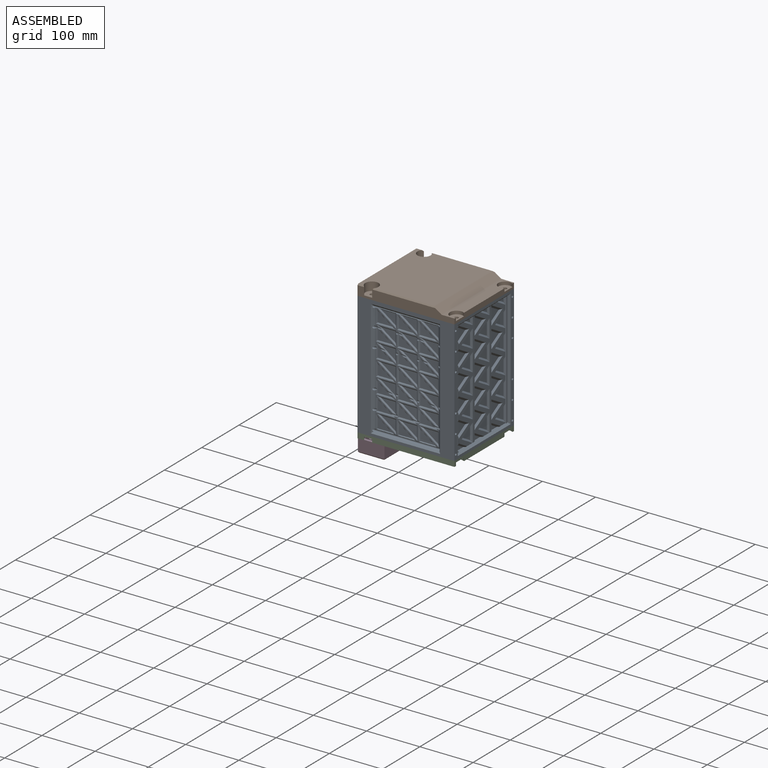
[diagram: assembled view]
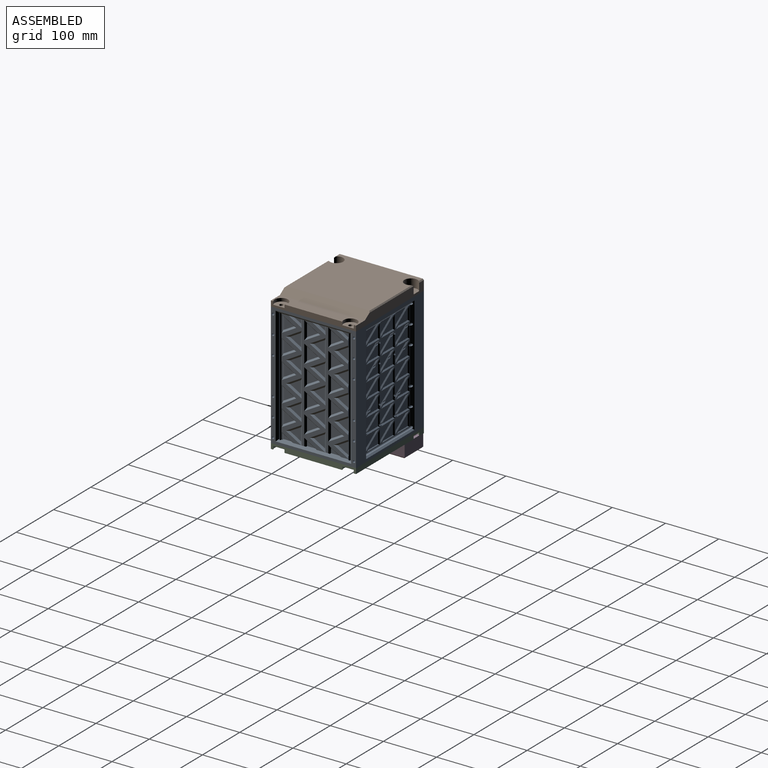
[diagram: assembled view, second angle]
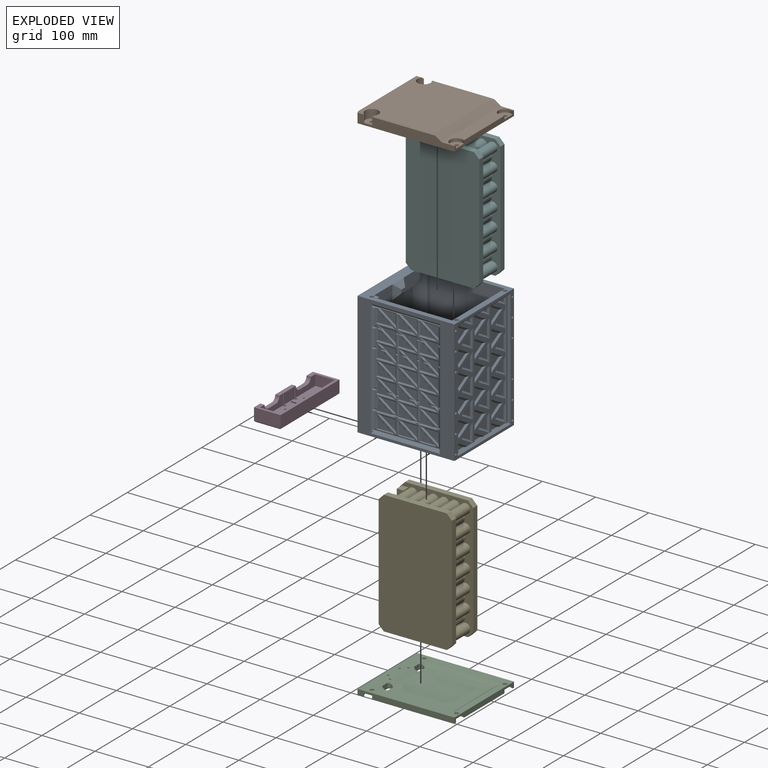
[diagram: exploded view]
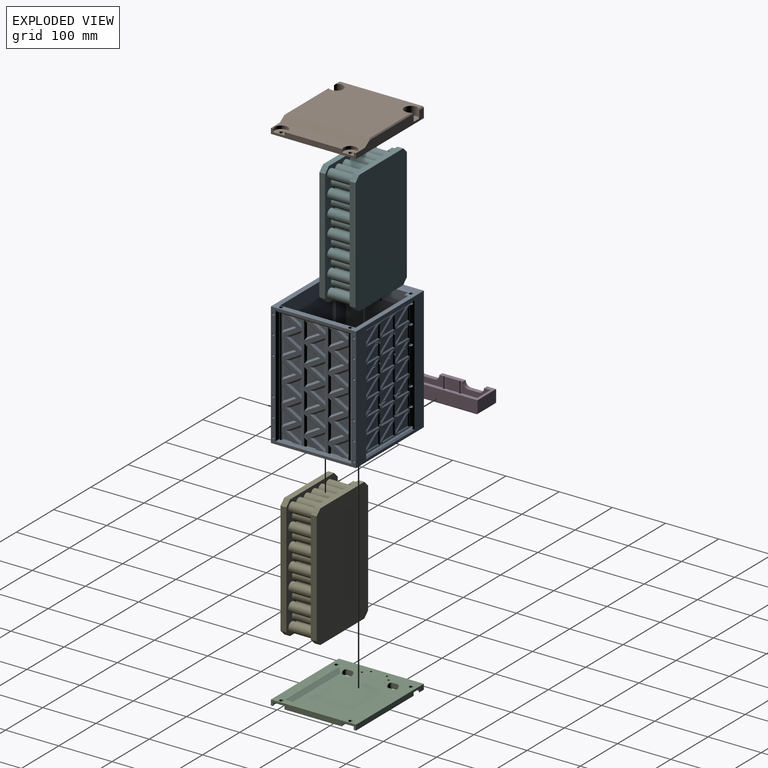
[diagram: exploded view, second angle]
FCSTD DOCUMENT  (FreeCAD 1.0R39109 (Git))
Label: BatteryMountPlate
License: All rights reserved
LicenseURL: https://en.wikipedia.org/wiki/All_rights_reserved
objects: Sketcher::SketchObject×43, PartDesign::Pocket×15, PartDesign::Hole×15, PartDesign::Pad×13, Part::Feature×10, PartDesign::Body×10, App::Part×5, App::DocumentObjectGroup×2, PartDesign::Chamfer×2, Assembly::JointGroup×1, Assembly::AssemblyObject×1
note: 241 computed .brp shape members not serialized (recipe doc carries the construction recipe); baked Part::Feature solids carry a one-line shape summary decoded from their .brp

FEATURE [Sketcher::SketchObject] Sketch
  ArcFitTolerance = 1e-06
  AttachmentSupport = -> [XY_Plane]
  FullyConstrained = false
  MakeInternals = false
  MapMode = 5
  sketch-geometry (8):
    g0: LineSegment StartX=-82.5 StartY=265 StartZ=0 EndX=-82.5 EndY=-15 EndZ=0
    g1: LineSegment StartX=-82.5 StartY=-15 StartZ=0 EndX=99.5 EndY=-15 EndZ=0
    g2: LineSegment StartX=99.5 StartY=-15 StartZ=0 EndX=99.5 EndY=265 EndZ=0
    g3: LineSegment StartX=-82.5 StartY=265 StartZ=0 EndX=-32.5 EndY=265 EndZ=0
    g4: LineSegment StartX=99.5 StartY=265 StartZ=0 EndX=50 EndY=265 EndZ=0
    g5: LineSegment StartX=50 StartY=265 StartZ=0 EndX=50 EndY=250 EndZ=0
    g6: LineSegment StartX=50 StartY=250 StartZ=0 EndX=-32.5 EndY=250 EndZ=0
    g7: LineSegment StartX=-32.5 StartY=250 StartZ=0 EndX=-32.5 EndY=265 EndZ=0
  constraints (16):
    c: Coincident(g0,g1)
    c: Coincident(g1,g2)
    c: Vertical(g0)
    c: Vertical(g2)
    c: Horizontal(g1)
    c: Coincident(g3,g0)
    c: Horizontal(g3)
    c: Coincident(g4,g2)
    c: Horizontal(g4)
    c: Coincident(g5,g4)
    c: Vertical(g5)
    c: Coincident(g6,g5)
    c: Horizontal(g6)
    c: Coincident(g7,g6)
    c: Vertical(g7)
    c: Coincident(g3,g7)
FEATURE [PartDesign::Pad] Pad
  Direction = (0,0,1)
  Length = 10
  Length2 = 10
  Profile = -> Sketch
  ReferenceAxis = -> Sketch [N_Axis]
  Refine = true
  Suppressed = false
  Type = 0
FEATURE [Sketcher::SketchObject] Sketch001
  ArcFitTolerance = 1e-06
  AttachmentSupport = -> [XY_Plane]
  FullyConstrained = false
  MakeInternals = false
  MapMode = 5
  sketch-geometry (4):
    g0: Circle CenterX=0 CenterY=0 CenterZ=0 NormalX=0 NormalY=0 NormalZ=1 AngleXU=0 Radius=7
    g1: Circle CenterX=0 CenterY=80 CenterZ=0 NormalX=0 NormalY=0 NormalZ=1 AngleXU=0 Radius=7
    g2: Circle CenterX=0 CenterY=155 CenterZ=0 NormalX=0 NormalY=0 NormalZ=1 AngleXU=0 Radius=7
    g3: Circle CenterX=0 CenterY=245 CenterZ=0 NormalX=0 NormalY=0 NormalZ=1 AngleXU=0 Radius=7
  constraints (4):
    c: Diameter(g0) = 14
    c: Diameter(g1) = 14
    c: Diameter(g2) = 14
    c: Diameter(g3) = 14
FEATURE [PartDesign::Pocket] Pocket
  BaseFeature = -> Pad
  Direction = (0,0,-1)
  Length = 3
  Length2 = 5
  Profile = -> Sketch001
  ReferenceAxis = -> Sketch001 [N_Axis]
  Refine = true
  Reversed = true
  Suppressed = false
  Type = 0
FEATURE [Sketcher::SketchObject] Sketch002
  ArcFitTolerance = 1e-06
  AttachmentOffset = pos=(0,0,10) rot=(0,0,1;0rad)
  AttachmentSupport = -> [XY_Plane]
  FullyConstrained = false
  MakeInternals = false
  MapMode = 5
  Placement = pos=(0,0,10) rot=(0,0,1;0rad)
  sketch-geometry (4):
    g0: Circle CenterX=0 CenterY=0 CenterZ=0 NormalX=0 NormalY=0 NormalZ=1 AngleXU=0 Radius=5.52175
    g1: Circle CenterX=0 CenterY=80 CenterZ=0 NormalX=0 NormalY=0 NormalZ=1 AngleXU=0 Radius=5.52175
    g2: Circle CenterX=0 CenterY=155 CenterZ=0 NormalX=0 NormalY=0 NormalZ=1 AngleXU=0 Radius=5.52175
    g3: Circle CenterX=0 CenterY=245 CenterZ=0 NormalX=0 NormalY=0 NormalZ=1 AngleXU=0 Radius=5.52175
FEATURE [PartDesign::Hole] Hole
  BaseFeature = -> Pocket
  CustomThreadClearance = 0
  Depth = 25
  DepthType = 0
  Diameter = 5.8
  DrillForDepth = false
  DrillPoint = 1
  DrillPointAngle = 118
  HoleCutCountersinkAngle = 90
  HoleCutCustomValues = false
  HoleCutDepth = 4.1
  HoleCutDiameter = 10.1
  HoleCutType = 6
  ModelThread = false
  Profile = -> Sketch002
  Refine = true
  Suppressed = false
  Tapered = false
  TaperedAngle = 90
  ThreadClass = 0
  ThreadDepth = 25
  ThreadDepthType = 0
  ThreadDirection = 0
  ThreadFit = 2
  ThreadSize = 13
  ThreadType = 1
  Threaded = false
  UseCustomThreadClearance = false
FEATURE [Part::Feature] Part__Feature001  label="CL350"
  shape: bbox 135 x 35 x 79.83 mm, 848 faces (baked)
FEATURE [Part::Feature] Part__Feature002  label="CL351"
  shape: bbox 135 x 10 x 75 mm, 286 faces (baked)
FEATURE [Part::Feature] Part__Feature003  label="CL352"
  shape: bbox 27.57 x 12.96 x 11.72 mm, 636 faces (baked)
FEATURE [Part::Feature] Part__Feature004  label="CL353"
  shape: bbox 27.57 x 12.96 x 11.72 mm, 636 faces (baked)
FEATURE [App::Part] CL350  label="CL354"
  Group = -> [Part__Feature001,Part__Feature002,Part__Feature003,Part__Feature004]
  Origin = -> Origin001
  Placement = pos=(-51,275,10.5) rot=(-1,0,0;4.71239rad)
FEATURE [Sketcher::SketchObject] Sketch004
  ArcFitTolerance = 1e-06
  AttachmentSupport = -> [XZ_Plane002]
  FullyConstrained = false
  MakeInternals = false
  MapMode = 5
  Placement = pos=(0,0,0) rot=(1,0,0;1.5708rad)
  sketch-geometry (4):
    g0: LineSegment StartX=-32 StartY=0 StartZ=0 EndX=-32 EndY=-54 EndZ=0
    g1: LineSegment StartX=-32 StartY=-54 StartZ=0 EndX=32 EndY=-54 EndZ=0
    g2: LineSegment StartX=32 StartY=-54 StartZ=0 EndX=32 EndY=0 EndZ=0
    g3: LineSegment StartX=32 StartY=0 StartZ=0 EndX=-32 EndY=0 EndZ=0
  constraints (10):
    c: Coincident(g0,g1)
    c: Coincident(g1,g2)
    c: Coincident(g2,g3)
    c: Coincident(g3,g0)
    c: Vertical(g0)
    c: Vertical(g2)
    c: Horizontal(g1)
    c: Horizontal(g3)
    c: Distance(g0,g2) = 64
    c: Distance(g1,g3) = 54
FEATURE [PartDesign::Pad] Pad001
  Direction = (0,-1,2e-16)
  Length = 500
  Length2 = 10
  Placement = pos=(0,0,0) rot=(1,0,0;1.5708rad)
  Profile = -> Sketch004
  ReferenceAxis = -> Sketch004 [N_Axis]
  Refine = true
  Suppressed = false
  Type = 0
FEATURE [PartDesign::Body] Body001  label="ChassisBeamMockup"
  AllowCompound = false
  Group = -> [Sketch004,Pad001]
  Origin = -> Origin002
  Placement = pos=(0,0,0) rot=(0,0,1;3.14159rad)
  Tip = -> Pad001
FEATURE [Sketcher::SketchObject] Sketch005
  ArcFitTolerance = 1e-06
  AttachmentSupport = -> [XZ_Plane003]
  FullyConstrained = false
  MakeInternals = false
  MapMode = 5
  Placement = pos=(0,0,0) rot=(1,0,0;1.5708rad)
  sketch-geometry (12):
    g0: LineSegment StartX=-38 StartY=0 StartZ=0 EndX=-0.5 EndY=0 EndZ=0
    g1: LineSegment StartX=-0.5 StartY=0 StartZ=0 EndX=-0.5 EndY=-4 EndZ=0
    g2: LineSegment StartX=-0.5 StartY=-4 StartZ=0 EndX=-31.5 EndY=-4 EndZ=0
    g3: LineSegment StartX=-31.5 StartY=-4 StartZ=0 EndX=-31.5 EndY=-60.5 EndZ=0
    g4: LineSegment StartX=-38 StartY=0 StartZ=0 EndX=-38 EndY=-52.5 EndZ=0
    g5: LineSegment StartX=-31.5 StartY=-60.5 StartZ=0 EndX=-108.5 EndY=-60.5 EndZ=0
    g6: LineSegment StartX=-102 StartY=-52.5 StartZ=0 EndX=-38 EndY=-52.5 EndZ=0
    g7: LineSegment StartX=-102 StartY=-52.5 StartZ=0 EndX=-102 EndY=0 EndZ=0
    g8: LineSegment StartX=-102 StartY=0 StartZ=0 EndX=-135 EndY=0 EndZ=0
    g9: LineSegment StartX=-135 StartY=0 StartZ=0 EndX=-135 EndY=-4 EndZ=0
    g10: LineSegment StartX=-135 StartY=-4 StartZ=0 EndX=-108.5 EndY=-4 EndZ=0
    g11: LineSegment StartX=-108.5 StartY=-4 StartZ=0 EndX=-108.5 EndY=-60.5 EndZ=0
  constraints (25):
    c: Horizontal(g0)
    c: Coincident(g1,g0)
    c: Vertical(g1)
    c: Coincident(g2,g1)
    c: Horizontal(g2)
    c: Coincident(g3,g2)
    c: Vertical(g3)
    c: Coincident(g4,g0)
    c: Vertical(g4)
    c: Coincident(g5,g3)
    c: Horizontal(g5)
    c: Coincident(g6,g4)
    c: Horizontal(g6)
    c: Coincident(g7,g6)
    c: PointOnObject(g7,g-1)
    c: Vertical(g7)
    c: Coincident(g8,g7)
    c: Horizontal(g8)
    c: Coincident(g9,g8)
    c: Vertical(g9)
    c: Coincident(g10,g9)
    c: Horizontal(g10)
    c: Coincident(g11,g10)
    c: Coincident(g11,g5)
    c: Vertical(g11)
FEATURE [PartDesign::Pad] Pad002
  Direction = (0,-1,2e-16)
  Length = 75
  Length2 = 10
  Placement = pos=(0,0,0) rot=(1,0,0;1.5708rad)
  Profile = -> Sketch005
  ReferenceAxis = -> Sketch005 [N_Axis]
  Refine = true
  Reversed = true
  Suppressed = false
  Type = 0
FEATURE [Sketcher::SketchObject] Sketch006
  ArcFitTolerance = 1e-06
  AttachmentSupport = -> [XY_Plane003]
  FullyConstrained = false
  MakeInternals = false
  MapMode = 5
  sketch-geometry (4):
    g0: Circle CenterX=-125.5 CenterY=10.3 CenterZ=0 NormalX=0 NormalY=0 NormalZ=1 AngleXU=0 Radius=2.1587
    g1: Circle CenterX=-125.5 CenterY=65.3 CenterZ=0 NormalX=0 NormalY=0 NormalZ=1 AngleXU=0 Radius=2.1587
    g2: Circle CenterX=-10.5 CenterY=10.3 CenterZ=0 NormalX=0 NormalY=0 NormalZ=1 AngleXU=0 Radius=2.1587
    g3: Circle CenterX=-10.5 CenterY=65.3 CenterZ=0 NormalX=0 NormalY=0 NormalZ=1 AngleXU=0 Radius=2.1587
FEATURE [PartDesign::Hole] Hole002
  BaseFeature = -> Pad002
  CustomThreadClearance = 0
  Depth = 25
  DepthType = 0
  Diameter = 5.8
  DrillForDepth = false
  DrillPoint = 1
  DrillPointAngle = 118
  HoleCutCountersinkAngle = 90
  HoleCutCustomValues = false
  HoleCutDepth = 0
  HoleCutDiameter = 6.1
  HoleCutType = 0
  ModelThread = false
  Placement = pos=(0,0,0) rot=(1,0,0;1.5708rad)
  Profile = -> Sketch006
  Refine = true
  Suppressed = false
  Tapered = false
  TaperedAngle = 90
  ThreadClass = 0
  ThreadDepth = 25
  ThreadDepthType = 0
  ThreadDirection = 0
  ThreadFit = 2
  ThreadSize = 13
  ThreadType = 1
  Threaded = false
  UseCustomThreadClearance = false
FEATURE [PartDesign::Body] Body002  label="CL350MountingClamp"
  AllowCompound = false
  Group = -> [Sketch005,Pad002,Sketch006,Hole002]
  Origin = -> Origin003
  Placement = pos=(70,265,0) rot=(0,0,1;0rad)
  Tip = -> Hole002
FEATURE [Assembly::JointGroup] Joints
FEATURE [Part::Feature] Part__Feature  label="SOLID"
  shape: bbox 138 x 68 x 232 mm, 209 faces (baked)
FEATURE [Part::Feature] Part__Feature005  label="COMPOUND"
  shape: bbox 7.92 x 4 x 4 mm, 3 faces, 0 solids (baked)
FEATURE [Part::Feature] Part__Feature006  label="COMPOUND001"
  shape: bbox 7.92 x 4 x 4 mm, 3 faces, 0 solids (baked)
FEATURE [App::Part] COMPOUND  label="COMPOUND002"
  Group = -> [Part__Feature005,Part__Feature006]
  Origin = -> Origin004
FEATURE [Part::Feature] Part__Feature007  label="SOLID001"
  shape: bbox 138 x 68 x 232 mm, 209 faces (baked)
FEATURE [Part::Feature] Part__Feature008  label="COMPOUND004"
  shape: bbox 7.92 x 4 x 4 mm, 3 faces, 0 solids (baked)
FEATURE [Part::Feature] Part__Feature009  label="COMPOUND005"
  shape: bbox 7.92 x 4 x 4 mm, 3 faces, 0 solids (baked)
FEATURE [App::Part] COMPOUND001  label="COMPOUND003"
  Group = -> [Part__Feature008,Part__Feature009]
  Origin = -> Origin006
FEATURE [App::Part] SAMSUNG_INR_20R
  Group = -> [Part__Feature,COMPOUND]
  Origin = -> Origin005
  Placement = pos=(21.5,0,0) rot=(0,0,1;0rad)
FEATURE [App::Part] SAMSUNG_INR_20R001
  Group = -> [Part__Feature007,COMPOUND001]
  Origin = -> Origin007
  Placement = pos=(21.5,73,0) rot=(0,0,1;0rad)
FEATURE [App::DocumentObjectGroup] Group  label="BatteryModules"
  Group = -> [SAMSUNG_INR_20R,SAMSUNG_INR_20R001]
FEATURE [Sketcher::SketchObject] Sketch007
  ArcFitTolerance = 1e-06
  AttachmentSupport = -> [XY_Plane008]
  FullyConstrained = false
  MakeInternals = false
  MapMode = 5
  sketch-geometry (4):
    g0: LineSegment StartX=0 StartY=0 StartZ=0 EndX=182 EndY=0 EndZ=0
    g1: LineSegment StartX=182 StartY=0 StartZ=0 EndX=182 EndY=160 EndZ=0
    g2: LineSegment StartX=182 StartY=160 StartZ=0 EndX=0 EndY=160 EndZ=0
    g3: LineSegment StartX=0 StartY=160 StartZ=0 EndX=0 EndY=0 EndZ=0
  constraints (8):
    c: Coincident(g0,g1)
    c: Coincident(g1,g2)
    c: Coincident(g2,g3)
    c: Coincident(g3,g0)
    c: Horizontal(g0)
    c: Horizontal(g2)
    c: Vertical(g1)
    c: Vertical(g3)
FEATURE [PartDesign::Pad] Pad003
  Direction = (0,0,1)
  Length = 232
  Length2 = 10
  Profile = -> Sketch007
  ReferenceAxis = -> Sketch007 [N_Axis]
  Refine = true
  Suppressed = false
  Type = 0
FEATURE [Sketcher::SketchObject] Sketch008
  ArcFitTolerance = 1e-06
  AttachmentOffset = pos=(0,0,20) rot=(0,0,1;0rad)
  AttachmentSupport = -> [YZ_Plane008]
  FullyConstrained = false
  MakeInternals = false
  MapMode = 5
  Placement = pos=(20,0,0) rot=(0.57735,0.57735,0.57735;2.0944rad)
  sketch-geometry (8):
    g0: LineSegment StartX=95 StartY=0 StartZ=0 EndX=95 EndY=25 EndZ=0
    g1: LineSegment StartX=95 StartY=25 StartZ=0 EndX=65 EndY=25 EndZ=0
    g2: LineSegment StartX=65 StartY=25 StartZ=0 EndX=65 EndY=0 EndZ=0
    g3: LineSegment StartX=65 StartY=0 StartZ=0 EndX=95 EndY=0 EndZ=0
    g4: LineSegment StartX=95 StartY=205 StartZ=0 EndX=95 EndY=232 EndZ=0
    g5: LineSegment StartX=95 StartY=232 StartZ=0 EndX=65 EndY=232 EndZ=0
    g6: LineSegment StartX=65 StartY=232 StartZ=0 EndX=65 EndY=205 EndZ=0
    g7: LineSegment StartX=65 StartY=205 StartZ=0 EndX=95 EndY=205 EndZ=0
  constraints (16):
    c: Coincident(g0,g1)
    c: Coincident(g1,g2)
    c: Coincident(g2,g3)
    c: Coincident(g3,g0)
    c: Vertical(g0)
    c: Vertical(g2)
    c: Horizontal(g1)
    c: Horizontal(g3)
    c: Coincident(g4,g5)
    c: Coincident(g5,g6)
    c: Coincident(g6,g7)
    c: Coincident(g7,g4)
    c: Vertical(g4)
    c: Vertical(g6)
    c: Horizontal(g5)
    c: Horizontal(g7)
FEATURE [Sketcher::SketchObject] Sketch009
  ArcFitTolerance = 1e-06
  AttachmentSupport = -> [YZ_Plane008]
  FullyConstrained = false
  MakeInternals = false
  MapMode = 5
  Placement = pos=(0,0,0) rot=(0.57735,0.57735,0.57735;2.0944rad)
  sketch-geometry (8):
    g0: LineSegment StartX=10 StartY=232 StartZ=0 EndX=10 EndY=207 EndZ=0
    g1: LineSegment StartX=10 StartY=207 StartZ=0 EndX=150 EndY=207 EndZ=0
    g2: LineSegment StartX=150 StartY=207 StartZ=0 EndX=150 EndY=232 EndZ=0
    g3: LineSegment StartX=150 StartY=232 StartZ=0 EndX=10 EndY=232 EndZ=0
    g4: LineSegment StartX=151 StartY=0 StartZ=0 EndX=151 EndY=30 EndZ=0
    g5: LineSegment StartX=151 StartY=30 StartZ=0 EndX=10 EndY=30 EndZ=0
    g6: LineSegment StartX=10 StartY=30 StartZ=0 EndX=10 EndY=0 EndZ=0
    g7: LineSegment StartX=10 StartY=0 StartZ=0 EndX=151 EndY=0 EndZ=0
  constraints (16):
    c: Coincident(g0,g1)
    c: Coincident(g1,g2)
    c: Coincident(g2,g3)
    c: Coincident(g3,g0)
    c: Vertical(g0)
    c: Vertical(g2)
    c: Horizontal(g1)
    c: Horizontal(g3)
    c: Coincident(g4,g5)
    c: Coincident(g5,g6)
    c: Coincident(g6,g7)
    c: Coincident(g7,g4)
    c: Vertical(g4)
    c: Vertical(g6)
    c: Horizontal(g5)
    c: Horizontal(g7)
FEATURE [Sketcher::SketchObject] Sketch010
  ArcFitTolerance = 1e-06
  AttachmentSupport = -> [XY_Plane008]
  FullyConstrained = false
  MakeInternals = false
  MapMode = 5
  sketch-geometry (4):
    g0: Circle CenterX=20 CenterY=150 CenterZ=0 NormalX=0 NormalY=0 NormalZ=1 AngleXU=0 Radius=2.38649
    g1: Circle CenterX=20 CenterY=10 CenterZ=0 NormalX=0 NormalY=0 NormalZ=1 AngleXU=0 Radius=3.41984
    g2: Circle CenterX=175.5 CenterY=145 CenterZ=0 NormalX=0 NormalY=0 NormalZ=1 AngleXU=0 Radius=1.76253
    g3: Circle CenterX=175.5 CenterY=15 CenterZ=0 NormalX=0 NormalY=0 NormalZ=1 AngleXU=0 Radius=2.37061
FEATURE [Sketcher::SketchObject] Sketch011
  ArcFitTolerance = 1e-06
  AttachmentSupport = -> [YZ_Plane008]
  FullyConstrained = false
  MakeInternals = false
  MapMode = 5
  Placement = pos=(0,0,0) rot=(0.57735,0.57735,0.57735;2.0944rad)
  sketch-geometry (12):
    g0: Circle CenterX=156 CenterY=220 CenterZ=0 NormalX=0 NormalY=0 NormalZ=1 AngleXU=0 Radius=2.39766
    g1: Circle CenterX=156 CenterY=185 CenterZ=0 NormalX=0 NormalY=0 NormalZ=1 AngleXU=0 Radius=2.39766
    g2: Circle CenterX=156 CenterY=150 CenterZ=0 NormalX=0 NormalY=0 NormalZ=1 AngleXU=0 Radius=2.39766
    g3: Circle CenterX=156 CenterY=80 CenterZ=0 NormalX=0 NormalY=0 NormalZ=1 AngleXU=0 Radius=2.39766
    g4: Circle CenterX=156 CenterY=45 CenterZ=0 NormalX=0 NormalY=0 NormalZ=1 AngleXU=0 Radius=2.39766
    g5: Circle CenterX=156 CenterY=10 CenterZ=0 NormalX=0 NormalY=0 NormalZ=1 AngleXU=0 Radius=2.39766
    g6: Circle CenterX=4 CenterY=220 CenterZ=0 NormalX=0 NormalY=0 NormalZ=1 AngleXU=0 Radius=1.85567
    g7: Circle CenterX=4 CenterY=185 CenterZ=0 NormalX=0 NormalY=0 NormalZ=1 AngleXU=0 Radius=1.85567
    g8: Circle CenterX=4 CenterY=150 CenterZ=0 NormalX=0 NormalY=0 NormalZ=1 AngleXU=0 Radius=1.85567
    g9: Circle CenterX=4 CenterY=80 CenterZ=0 NormalX=0 NormalY=0 NormalZ=1 AngleXU=0 Radius=1.85567
    g10: Circle CenterX=4 CenterY=45 CenterZ=0 NormalX=0 NormalY=0 NormalZ=1 AngleXU=0 Radius=1.85567
    g11: Circle CenterX=4 CenterY=10 CenterZ=0 NormalX=0 NormalY=0 NormalZ=1 AngleXU=0 Radius=1.85567
FEATURE [Sketcher::SketchObject] Sketch012
  ArcFitTolerance = 1e-06
  AttachmentSupport = -> [XY_Plane009]
  FullyConstrained = false
  MakeInternals = false
  MapMode = 5
  sketch-geometry (4):
    g0: LineSegment StartX=0 StartY=2 StartZ=0 EndX=182 EndY=2 EndZ=0
    g1: LineSegment StartX=182 StartY=2 StartZ=0 EndX=182 EndY=162 EndZ=0
    g2: LineSegment StartX=182 StartY=162 StartZ=0 EndX=0 EndY=162 EndZ=0
    g3: LineSegment StartX=0 StartY=162 StartZ=0 EndX=0 EndY=2 EndZ=0
  constraints (8):
    c: Coincident(g0,g1)
    c: Coincident(g1,g2)
    c: Coincident(g2,g3)
    c: Coincident(g3,g0)
    c: Horizontal(g0)
    c: Horizontal(g2)
    c: Vertical(g1)
    c: Vertical(g3)
FEATURE [PartDesign::Pad] Pad006
  Direction = (0,0,1)
  Length = 20
  Length2 = 10
  Profile = -> Sketch012
  ReferenceAxis = -> Sketch012 [N_Axis]
  Refine = true
  Suppressed = false
  Type = 0
FEATURE [Sketcher::SketchObject] Sketch013
  ArcFitTolerance = 1e-06
  AttachmentOffset = pos=(0,0,20) rot=(0,0,1;0rad)
  AttachmentSupport = -> [XY_Plane009]
  FullyConstrained = false
  MakeInternals = false
  MapMode = 5
  Placement = pos=(0,0,20) rot=(0,0,1;0rad)
  sketch-geometry (4):
    g0: Circle CenterX=20 CenterY=152 CenterZ=0 NormalX=0 NormalY=0 NormalZ=1 AngleXU=0 Radius=2.38649
    g1: Circle CenterX=20 CenterY=12 CenterZ=0 NormalX=0 NormalY=0 NormalZ=1 AngleXU=0 Radius=3.41984
    g2: Circle CenterX=175.5 CenterY=147 CenterZ=0 NormalX=0 NormalY=0 NormalZ=1 AngleXU=0 Radius=1.76253
    g3: Circle CenterX=175.5 CenterY=17 CenterZ=0 NormalX=0 NormalY=0 NormalZ=1 AngleXU=0 Radius=2.37061
FEATURE [PartDesign::Hole] Hole005
  BaseFeature = -> Pad006
  CustomThreadClearance = 0
  Depth = 25
  DepthType = 0
  Diameter = 7.1
  DrillForDepth = false
  DrillPoint = 1
  DrillPointAngle = 118
  HoleCutCountersinkAngle = 90
  HoleCutCustomValues = false
  HoleCutDepth = 16
  HoleCutDiameter = 25
  HoleCutType = 1
  ModelThread = false
  Profile = -> Sketch013
  Refine = true
  Suppressed = false
  Tapered = false
  TaperedAngle = 90
  ThreadClass = 0
  ThreadDepth = 25
  ThreadDepthType = 0
  ThreadDirection = 0
  ThreadFit = 0
  ThreadSize = 9
  ThreadType = 3
  Threaded = false
  UseCustomThreadClearance = false
FEATURE [Sketcher::SketchObject] Sketch014
  ArcFitTolerance = 1e-06
  AttachmentSupport = -> [XY_Plane010]
  FullyConstrained = false
  MakeInternals = false
  MapMode = 5
  sketch-geometry (4):
    g0: LineSegment StartX=0 StartY=2 StartZ=0 EndX=182 EndY=2 EndZ=0
    g1: LineSegment StartX=182 StartY=2 StartZ=0 EndX=182 EndY=162 EndZ=0
    g2: LineSegment StartX=182 StartY=162 StartZ=0 EndX=0 EndY=162 EndZ=0
    g3: LineSegment StartX=0 StartY=162 StartZ=0 EndX=0 EndY=2 EndZ=0
  constraints (8):
    c: Coincident(g0,g1)
    c: Coincident(g1,g2)
    c: Coincident(g2,g3)
    c: Coincident(g3,g0)
    c: Horizontal(g0)
    c: Horizontal(g2)
    c: Vertical(g1)
    c: Vertical(g3)
FEATURE [PartDesign::Pad] Pad007
  Direction = (0,0,1)
  Length = 10
  Length2 = 10
  Profile = -> Sketch014
  ReferenceAxis = -> Sketch014 [N_Axis]
  Refine = true
  Reversed = true
  Suppressed = false
  Type = 0
FEATURE [Sketcher::SketchObject] Sketch015
  ArcFitTolerance = 1e-06
  AttachmentSupport = -> [XY_Plane008]
  FullyConstrained = false
  MakeInternals = false
  MapMode = 5
  sketch-geometry (8):
    g0: LineSegment StartX=171 StartY=151.4 StartZ=0 EndX=30 EndY=151.4 EndZ=0
    g1: LineSegment StartX=171 StartY=151.4 StartZ=0 EndX=171 EndY=9.7 EndZ=0
    g2: LineSegment StartX=171 StartY=9.7 StartZ=0 EndX=30 EndY=9.7 EndZ=0
    g3: LineSegment StartX=30 StartY=9.7 StartZ=0 EndX=30 EndY=16 EndZ=0
    g4: LineSegment StartX=30 StartY=151.4 StartZ=0 EndX=30 EndY=144 EndZ=0
    g5: LineSegment StartX=30 StartY=144 StartZ=0 EndX=3 EndY=144 EndZ=0
    g6: LineSegment StartX=3 StartY=144 StartZ=0 EndX=3 EndY=16 EndZ=0
    g7: LineSegment StartX=3 StartY=16 StartZ=0 EndX=30 EndY=16 EndZ=0
  constraints (16):
    c: Horizontal(g0)
    c: Coincident(g1,g0)
    c: Vertical(g1)
    c: Coincident(g2,g1)
    c: Horizontal(g2)
    c: Coincident(g3,g2)
    c: Vertical(g3)
    c: Coincident(g4,g0)
    c: Vertical(g4)
    c: Coincident(g5,g4)
    c: Horizontal(g5)
    c: Coincident(g6,g5)
    c: Vertical(g6)
    c: Coincident(g7,g6)
    c: Coincident(g7,g3)
    c: Horizontal(g7)
FEATURE [PartDesign::Pocket] Pocket001
  BaseFeature = -> Pad003
  Direction = (0,0,-1)
  Length = 300
  Length2 = 5
  Profile = -> Sketch015
  ReferenceAxis = -> Sketch015 [N_Axis]
  Refine = true
  Reversed = true
  Suppressed = false
  Type = 0
FEATURE [PartDesign::Pad] Pad004
  BaseFeature = -> Pocket001
  Direction = (1,0,0)
  Length = 20
  Length2 = 10
  Profile = -> Sketch009
  ReferenceAxis = -> Sketch009 [N_Axis]
  Refine = true
  Suppressed = false
  Type = 0
FEATURE [PartDesign::Pad] Pad005
  BaseFeature = -> Pad004
  Direction = (1,0,0)
  Length = 10
  Length2 = 10
  Profile = -> Sketch008
  ReferenceAxis = -> Sketch008 [N_Axis]
  Refine = true
  Suppressed = false
  TaperAngle = -45
  Type = 0
FEATURE [PartDesign::Hole] Hole003
  BaseFeature = -> Pad005
  CustomThreadClearance = 0
  Depth = 675.49
  DepthType = 1
  Diameter = 7.1
  DrillForDepth = false
  DrillPoint = 1
  DrillPointAngle = 118
  HoleCutCountersinkAngle = 90
  HoleCutCustomValues = false
  HoleCutDepth = 0
  HoleCutDiameter = 0
  HoleCutType = 0
  ModelThread = false
  Profile = -> Sketch010
  Refine = true
  Reversed = true
  Suppressed = false
  Tapered = false
  TaperedAngle = 90
  ThreadClass = 0
  ThreadDepth = 675.49
  ThreadDepthType = 0
  ThreadDirection = 0
  ThreadFit = 0
  ThreadSize = 9
  ThreadType = 3
  Threaded = false
  UseCustomThreadClearance = false
FEATURE [PartDesign::Hole] Hole004
  BaseFeature = -> Hole003
  CustomThreadClearance = 0
  Depth = 686.574
  DepthType = 1
  Diameter = 4.5
  DrillForDepth = false
  DrillPoint = 1
  DrillPointAngle = 118
  HoleCutCountersinkAngle = 90
  HoleCutCustomValues = false
  HoleCutDepth = 0
  HoleCutDiameter = 6.1
  HoleCutType = 0
  ModelThread = false
  Profile = -> Sketch011
  Refine = true
  Reversed = true
  Suppressed = false
  Tapered = false
  TaperedAngle = 90
  ThreadClass = 0
  ThreadDepth = 686.574
  ThreadDepthType = 0
  ThreadDirection = 0
  ThreadFit = 0
  ThreadSize = 8
  ThreadType = 3
  Threaded = true
  UseCustomThreadClearance = false
FEATURE [Sketcher::SketchObject] Sketch016
  ArcFitTolerance = 1e-06
  AttachmentOffset = pos=(0,0,-20) rot=(0,0,1;0rad)
  AttachmentSupport = -> [XY_Plane010]
  FullyConstrained = false
  MakeInternals = false
  MapMode = 5
  Placement = pos=(0,0,-20) rot=(0,0,1;0rad)
  sketch-geometry (4):
    g0: Circle CenterX=20 CenterY=152 CenterZ=0 NormalX=0 NormalY=0 NormalZ=1 AngleXU=0 Radius=2.38649
    g1: Circle CenterX=20 CenterY=12 CenterZ=0 NormalX=0 NormalY=0 NormalZ=1 AngleXU=0 Radius=3.41984
    g2: Circle CenterX=175.5 CenterY=147 CenterZ=0 NormalX=0 NormalY=0 NormalZ=1 AngleXU=0 Radius=1.76253
    g3: Circle CenterX=175.5 CenterY=17 CenterZ=0 NormalX=0 NormalY=0 NormalZ=1 AngleXU=0 Radius=2.37061
FEATURE [PartDesign::Hole] Hole006
  BaseFeature = -> Pad007
  CustomThreadClearance = 0
  Depth = 52
  DepthType = 0
  Diameter = 7.1
  DrillForDepth = false
  DrillPoint = 1
  DrillPointAngle = 118
  HoleCutCountersinkAngle = 90
  HoleCutCustomValues = false
  HoleCutDepth = 16
  HoleCutDiameter = 25
  HoleCutType = 1
  ModelThread = false
  Profile = -> Sketch016
  Refine = true
  Reversed = true
  Suppressed = false
  Tapered = false
  TaperedAngle = 90
  ThreadClass = 0
  ThreadDepth = 52
  ThreadDepthType = 0
  ThreadDirection = 0
  ThreadFit = 0
  ThreadSize = 9
  ThreadType = 3
  Threaded = false
  UseCustomThreadClearance = false
FEATURE [Sketcher::SketchObject] Sketch017
  ArcFitTolerance = 1e-06
  AttachmentSupport = -> [XY_Plane010]
  FullyConstrained = false
  MakeInternals = false
  MapMode = 5
  sketch-geometry (8):
    g0: ArcOfCircle CenterX=30 CenterY=130 CenterZ=0 NormalX=0 NormalY=0 NormalZ=1 AngleXU=0 Radius=5 StartAngle=2.6e-15 EndAngle=3.14159
    g1: ArcOfCircle CenterX=30 CenterY=120 CenterZ=0 NormalX=0 NormalY=0 NormalZ=1 AngleXU=0 Radius=5 StartAngle=3.14159 EndAngle=6.28319
    g2: LineSegment StartX=35 StartY=130 StartZ=0 EndX=35 EndY=120 EndZ=0
    g3: LineSegment StartX=25 StartY=130 StartZ=0 EndX=25 EndY=120 EndZ=0
    g4: ArcOfCircle CenterX=30 CenterY=45 CenterZ=0 NormalX=0 NormalY=0 NormalZ=1 AngleXU=0 Radius=5 StartAngle=1e-16 EndAngle=3.14159
    g5: ArcOfCircle CenterX=30 CenterY=35 CenterZ=0 NormalX=0 NormalY=0 NormalZ=1 AngleXU=0 Radius=5 StartAngle=3.14159 EndAngle=6.28319
    g6: LineSegment StartX=35 StartY=45 StartZ=0 EndX=35 EndY=35 EndZ=0
    g7: LineSegment StartX=25 StartY=45 StartZ=0 EndX=25 EndY=35 EndZ=0
  constraints (12):
    c: Tangent(g0,g2) = 1.5708
    c: Tangent(g0,g3) = -1.5708
    c: Tangent(g1,g2) = 1.5708
    c: Tangent(g1,g3) = -1.5708
    c: Equal(g0,g1)
    c: Vertical(g3)
    c: Tangent(g4,g6) = 1.5708
    c: Tangent(g4,g7) = -1.5708
    c: Tangent(g5,g6) = 1.5708
    c: Tangent(g5,g7) = -1.5708
    c: Equal(g4,g5)
    c: Vertical(g7)
FEATURE [PartDesign::Pocket] Pocket002
  BaseFeature = -> Hole006
  Direction = (0,0,-1)
  Length = 29
  Length2 = 5
  Profile = -> Sketch017
  ReferenceAxis = -> Sketch017 [N_Axis]
  Refine = true
  Suppressed = false
  Type = 0
FEATURE [Sketcher::SketchObject] Sketch018
  ArcFitTolerance = 1e-06
  AttachmentSupport = -> [XY_Plane010]
  FullyConstrained = false
  MakeInternals = false
  MapMode = 5
  sketch-geometry (4):
    g0: LineSegment StartX=25 StartY=145 StartZ=0 EndX=25 EndY=20 EndZ=0
    g1: LineSegment StartX=25 StartY=20 StartZ=0 EndX=170 EndY=20 EndZ=0
    g2: LineSegment StartX=170 StartY=20 StartZ=0 EndX=170 EndY=145 EndZ=0
    g3: LineSegment StartX=170 StartY=145 StartZ=0 EndX=25 EndY=145 EndZ=0
  constraints (8):
    c: Coincident(g0,g1)
    c: Coincident(g1,g2)
    c: Coincident(g2,g3)
    c: Coincident(g3,g0)
    c: Vertical(g0)
    c: Vertical(g2)
    c: Horizontal(g1)
    c: Horizontal(g3)
FEATURE [PartDesign::Pocket] Pocket003
  BaseFeature = -> Pocket002
  Direction = (0,0,-1)
  Length = 5
  Length2 = 5
  Profile = -> Sketch018
  ReferenceAxis = -> Sketch018 [N_Axis]
  Refine = true
  Suppressed = false
  TaperAngle = -60
  Type = 0
FEATURE [Sketcher::SketchObject] Sketch019
  ArcFitTolerance = 1e-06
  AttachmentOffset = pos=(0,0,-20) rot=(0,0,1;0rad)
  AttachmentSupport = -> [XY_Plane010]
  FullyConstrained = false
  MakeInternals = false
  MapMode = 5
  Placement = pos=(0,0,-20) rot=(0,0,1;0rad)
  sketch-geometry (4):
    g0: Circle CenterX=20 CenterY=60 CenterZ=0 NormalX=0 NormalY=0 NormalZ=1 AngleXU=0 Radius=1
    g1: Circle CenterX=20 CenterY=110 CenterZ=0 NormalX=0 NormalY=0 NormalZ=1 AngleXU=0 Radius=1
    g2: Circle CenterX=10 CenterY=100 CenterZ=0 NormalX=0 NormalY=0 NormalZ=1 AngleXU=0 Radius=1
    g3: Circle CenterX=10 CenterY=70 CenterZ=0 NormalX=0 NormalY=0 NormalZ=1 AngleXU=0 Radius=1
FEATURE [PartDesign::Hole] Hole007
  BaseFeature = -> Pocket003
  CustomThreadClearance = 0
  Depth = 25
  DepthType = 0
  Diameter = 4.2
  DrillForDepth = false
  DrillPoint = 1
  DrillPointAngle = 118
  HoleCutCountersinkAngle = 90
  HoleCutCustomValues = false
  HoleCutDepth = 0
  HoleCutDiameter = 6.1
  HoleCutType = 0
  ModelThread = false
  Profile = -> Sketch019
  Refine = true
  Reversed = true
  Suppressed = false
  Tapered = false
  TaperedAngle = 90
  ThreadClass = 0
  ThreadDepth = 25
  ThreadDepthType = 0
  ThreadDirection = 0
  ThreadFit = 0
  ThreadSize = 13
  ThreadType = 1
  Threaded = true
  UseCustomThreadClearance = false
FEATURE [PartDesign::Body] Body005  label="EndLid002"
  AllowCompound = false
  Group = -> [Sketch014,Pad007,Sketch016,Hole006,Sketch017,Pocket002,Sketch018,Pocket003,Sketch019,Hole007]
  Origin = -> Origin010
  Placement = pos=(-80,-12,-116) rot=(0,0,1;0rad)
  Tip = -> Hole007
FEATURE [Sketcher::SketchObject] Sketch020
  ArcFitTolerance = 1e-06
  AttachmentSupport = -> [XY_Plane009]
  FullyConstrained = false
  MakeInternals = false
  MapMode = 5
  sketch-geometry (4):
    g0: LineSegment StartX=25 StartY=145 StartZ=0 EndX=25 EndY=20 EndZ=0
    g1: LineSegment StartX=25 StartY=20 StartZ=0 EndX=171 EndY=20 EndZ=0
    g2: LineSegment StartX=171 StartY=20 StartZ=0 EndX=171 EndY=145 EndZ=0
    g3: LineSegment StartX=171 StartY=145 StartZ=0 EndX=25 EndY=145 EndZ=0
  constraints (8):
    c: Coincident(g0,g1)
    c: Coincident(g1,g2)
    c: Coincident(g2,g3)
    c: Coincident(g3,g0)
    c: Vertical(g0)
    c: Vertical(g2)
    c: Horizontal(g1)
    c: Horizontal(g3)
FEATURE [PartDesign::Pocket] Pocket004
  BaseFeature = -> Hole005
  Direction = (0,0,-1)
  Length = 5
  Length2 = 5
  Profile = -> Sketch020
  ReferenceAxis = -> Sketch020 [N_Axis]
  Refine = true
  Reversed = true
  Suppressed = false
  TaperAngle = -60
  Type = 0
FEATURE [PartDesign::Chamfer] Chamfer001
  Angle = 45
  Base = -> Pocket004 [Edge3,Edge7,Edge31,Edge34]
  BaseFeature = -> Pocket004
  ChamferType = 0
  FlipDirection = false
  Refine = true
  Size = 2
  Size2 = 1
  SupportTransform = false
  Suppressed = false
  UseAllEdges = false
FEATURE [Sketcher::SketchObject] Sketch021
  ArcFitTolerance = 1e-06
  AttachmentSupport = -> [XY_Plane011]
  FullyConstrained = false
  MakeInternals = false
  MapMode = 5
  sketch-geometry (4):
    g0: LineSegment StartX=50 StartY=3 StartZ=0 EndX=50 EndY=161 EndZ=0
    g1: LineSegment StartX=50 StartY=161 StartZ=0 EndX=0 EndY=161 EndZ=0
    g2: LineSegment StartX=0 StartY=161 StartZ=0 EndX=0 EndY=3 EndZ=0
    g3: LineSegment StartX=0 StartY=3 StartZ=0 EndX=50 EndY=3 EndZ=0
  constraints (8):
    c: Coincident(g0,g1)
    c: Coincident(g1,g2)
    c: Coincident(g2,g3)
    c: Coincident(g3,g0)
    c: Vertical(g0)
    c: Vertical(g2)
    c: Horizontal(g1)
    c: Horizontal(g3)
FEATURE [PartDesign::Pad] Pad008
  Direction = (0,0,1)
  Length = 25
  Length2 = 10
  Profile = -> Sketch021
  ReferenceAxis = -> Sketch021 [N_Axis]
  Refine = true
  Reversed = true
  Suppressed = false
  Type = 0
FEATURE [Sketcher::SketchObject] Sketch022
  ArcFitTolerance = 1e-06
  AttachmentSupport = -> [XY_Plane011]
  FullyConstrained = false
  MakeInternals = false
  MapMode = 5
  sketch-geometry (4):
    g0: LineSegment StartX=45 StartY=8 StartZ=0 EndX=45 EndY=156 EndZ=0
    g1: LineSegment StartX=45 StartY=156 StartZ=0 EndX=8 EndY=156 EndZ=0
    g2: LineSegment StartX=8 StartY=156 StartZ=0 EndX=8 EndY=8 EndZ=0
    g3: LineSegment StartX=8 StartY=8 StartZ=0 EndX=45 EndY=8 EndZ=0
  constraints (8):
    c: Coincident(g0,g1)
    c: Coincident(g1,g2)
    c: Coincident(g2,g3)
    c: Coincident(g3,g0)
    c: Vertical(g0)
    c: Vertical(g2)
    c: Horizontal(g1)
    c: Horizontal(g3)
FEATURE [PartDesign::Pocket] Pocket005
  BaseFeature = -> Pad008
  Direction = (0,0,-1)
  Length = 20
  Length2 = 5
  Profile = -> Sketch022
  ReferenceAxis = -> Sketch022 [N_Axis]
  Refine = true
  Suppressed = false
  Type = 0
FEATURE [Sketcher::SketchObject] Sketch023
  ArcFitTolerance = 1e-06
  AttachmentSupport = -> [YZ_Plane011]
  FullyConstrained = false
  MakeInternals = false
  MapMode = 5
  Placement = pos=(0,0,0) rot=(0.57735,0.57735,0.57735;2.0944rad)
  sketch-geometry (8):
    g0: ArcOfCircle CenterX=30 CenterY=-6.679e-13 CenterZ=0 NormalX=0 NormalY=0 NormalZ=1 AngleXU=0 Radius=10 StartAngle=1.5708 EndAngle=4.71239
    g1: ArcOfCircle CenterX=50 CenterY=-6.679e-13 CenterZ=0 NormalX=0 NormalY=0 NormalZ=1 AngleXU=0 Radius=10 StartAngle=4.71239 EndAngle=7.85398
    g2: LineSegment StartX=30 StartY=10 StartZ=0 EndX=50 EndY=10 EndZ=0
    g3: LineSegment StartX=30 StartY=-10 StartZ=0 EndX=50 EndY=-10 EndZ=0
    g4: ArcOfCircle CenterX=114 CenterY=-3.331e-13 CenterZ=0 NormalX=0 NormalY=0 NormalZ=1 AngleXU=0 Radius=10 StartAngle=1.5708 EndAngle=4.71239
    g5: ArcOfCircle CenterX=134 CenterY=-3.331e-13 CenterZ=0 NormalX=0 NormalY=0 NormalZ=1 AngleXU=0 Radius=10 StartAngle=4.71239 EndAngle=7.85398
    g6: LineSegment StartX=114 StartY=10 StartZ=0 EndX=134 EndY=10 EndZ=0
    g7: LineSegment StartX=114 StartY=-10 StartZ=0 EndX=134 EndY=-10 EndZ=0
  constraints (12):
    c: Tangent(g0,g2) = 1.5708
    c: Tangent(g0,g3) = -1.5708
    c: Tangent(g1,g2) = 1.5708
    c: Tangent(g1,g3) = -1.5708
    c: Equal(g0,g1)
    c: Horizontal(g3)
    c: Tangent(g4,g6) = 1.5708
    c: Tangent(g4,g7) = -1.5708
    c: Tangent(g5,g6) = 1.5708
    c: Tangent(g5,g7) = -1.5708
    c: Equal(g4,g5)
    c: Horizontal(g7)
FEATURE [PartDesign::Pocket] Pocket006
  BaseFeature = -> Pocket005
  Direction = (-1,0,0)
  Length = 16
  Length2 = 5
  Profile = -> Sketch023
  ReferenceAxis = -> Sketch023 [N_Axis]
  Refine = true
  Reversed = true
  Suppressed = false
  Type = 0
FEATURE [Sketcher::SketchObject] Sketch024
  ArcFitTolerance = 1e-06
  AttachmentOffset = pos=(0,0,-25) rot=(0,0,1;0rad)
  AttachmentSupport = -> [XY_Plane011]
  FullyConstrained = false
  MakeInternals = false
  MapMode = 5
  Placement = pos=(0,0,-25) rot=(0,0,1;0rad)
  sketch-geometry (4):
    g0: Circle CenterX=10 CenterY=100 CenterZ=0 NormalX=0 NormalY=0 NormalZ=1 AngleXU=0 Radius=3.3694
    g1: Circle CenterX=20 CenterY=110 CenterZ=0 NormalX=0 NormalY=0 NormalZ=1 AngleXU=0 Radius=3.15096
    g2: Circle CenterX=10 CenterY=70 CenterZ=0 NormalX=0 NormalY=0 NormalZ=1 AngleXU=0 Radius=3.07208
    g3: Circle CenterX=20 CenterY=60 CenterZ=0 NormalX=0 NormalY=0 NormalZ=1 AngleXU=0 Radius=3.19775
FEATURE [PartDesign::Hole] Hole008
  BaseFeature = -> Pocket006
  CustomThreadClearance = 0
  Depth = 25
  DepthType = 0
  Diameter = 5.5
  DrillForDepth = false
  DrillPoint = 1
  DrillPointAngle = 118
  HoleCutCountersinkAngle = 90
  HoleCutCustomValues = false
  HoleCutDepth = 0
  HoleCutDiameter = 6.1
  HoleCutType = 0
  ModelThread = false
  Profile = -> Sketch024
  Refine = true
  Reversed = true
  Suppressed = false
  Tapered = false
  TaperedAngle = 90
  ThreadClass = 0
  ThreadDepth = 25
  ThreadDepthType = 0
  ThreadDirection = 0
  ThreadFit = 0
  ThreadSize = 13
  ThreadType = 1
  Threaded = false
  UseCustomThreadClearance = false
FEATURE [PartDesign::Chamfer] Chamfer002
  Angle = 45
  Base = -> Hole008 [Edge7,Edge20,Edge10,Edge4]
  BaseFeature = -> Hole008
  ChamferType = 0
  FlipDirection = false
  Refine = true
  Size = 2
  Size2 = 1
  SupportTransform = false
  Suppressed = false
  UseAllEdges = false
FEATURE [PartDesign::Body] Body006  label="WireEnclosure"
  AllowCompound = false
  Group = -> [Sketch021,Pad008,Sketch022,Pocket005,Sketch023,Pocket006,Sketch024,Hole008,Chamfer002]
  Origin = -> Origin011
  Placement = pos=(-80,-12,-126) rot=(0,0,1;0rad)
  Tip = -> Chamfer002
FEATURE [Sketcher::SketchObject] Sketch025
  ArcFitTolerance = 1e-06
  AttachmentSupport = -> [XY_Plane009]
  FullyConstrained = false
  MakeInternals = false
  MapMode = 5
  sketch-geometry (4):
    g0: LineSegment StartX=34 StartY=136 StartZ=0 EndX=34 EndY=29 EndZ=0
    g1: LineSegment StartX=34 StartY=29 StartZ=0 EndX=149 EndY=29 EndZ=0
    g2: LineSegment StartX=149 StartY=29 StartZ=0 EndX=149 EndY=136 EndZ=0
    g3: LineSegment StartX=149 StartY=136 StartZ=0 EndX=34 EndY=136 EndZ=0
  constraints (8):
    c: Coincident(g0,g1)
    c: Coincident(g1,g2)
    c: Coincident(g2,g3)
    c: Coincident(g3,g0)
    c: Vertical(g0)
    c: Vertical(g2)
    c: Horizontal(g1)
    c: Horizontal(g3)
FEATURE [PartDesign::Pocket] Pocket007
  BaseFeature = -> Chamfer001
  Direction = (0,0,-1)
  Length = 12
  Length2 = 5
  Profile = -> Sketch025
  ReferenceAxis = -> Sketch025 [N_Axis]
  Refine = true
  Reversed = true
  Suppressed = false
  Type = 0
FEATURE [Sketcher::SketchObject] Sketch026
  ArcFitTolerance = 1e-06
  AttachmentOffset = pos=(0,0,178) rot=(0,0,1;0rad)
  AttachmentSupport = -> [YZ_Plane008]
  FullyConstrained = false
  MakeInternals = false
  MapMode = 5
  Placement = pos=(178,0,0) rot=(0.57735,0.57735,0.57735;2.0944rad)
  sketch-geometry (138):
    g0: Circle [constr] CenterX=35 CenterY=206 CenterZ=0 NormalX=0 NormalY=0 NormalZ=1 AngleXU=0 Radius=20
    g1: LineSegment StartX=45 StartY=206 StartZ=0 EndX=15 EndY=223.321 EndZ=0
    g2: LineSegment StartX=15 StartY=223.321 StartZ=0 EndX=15 EndY=188.679 EndZ=0
    g3: LineSegment StartX=15 StartY=188.679 StartZ=0 EndX=45 EndY=206 EndZ=0
    g4: Circle [constr] CenterX=35 CenterY=166 CenterZ=0 NormalX=0 NormalY=0 NormalZ=1 AngleXU=0 Radius=20
    g5: LineSegment StartX=45 StartY=166 StartZ=0 EndX=15 EndY=183.321 EndZ=0
    g6: LineSegment StartX=15 StartY=183.321 StartZ=0 EndX=15 EndY=148.679 EndZ=0
    g7: LineSegment StartX=15 StartY=148.679 StartZ=0 EndX=45 EndY=166 EndZ=0
    g8: LineSegment StartX=25 StartY=186 StartZ=0 EndX=55 EndY=168.679 EndZ=0
    g9: LineSegment StartX=55 StartY=168.679 StartZ=0 EndX=55 EndY=203.321 EndZ=0
    g10: LineSegment StartX=55 StartY=203.321 StartZ=0 EndX=25 EndY=186 EndZ=0
    g11: Circle [constr] CenterX=45 CenterY=186 CenterZ=0 NormalX=0 NormalY=0 NormalZ=1 AngleXU=0 Radius=20
    g12: LineSegment StartX=25 StartY=146 StartZ=0 EndX=55 EndY=128.679 EndZ=0
    g13: LineSegment StartX=55 StartY=128.679 StartZ=0 EndX=55 EndY=163.321 EndZ=0
    g14: LineSegment StartX=55 StartY=163.321 StartZ=0 EndX=25 EndY=146 EndZ=0
    g15: Circle [constr] CenterX=45 CenterY=146 CenterZ=0 NormalX=0 NormalY=0 NormalZ=1 AngleXU=0 Radius=20
    g16: Circle [constr] CenterX=35 CenterY=126 CenterZ=0 NormalX=0 NormalY=0 NormalZ=1 AngleXU=0 Radius=20
    g17: LineSegment StartX=45 StartY=126 StartZ=0 EndX=15 EndY=143.321 EndZ=0
    g18: LineSegment StartX=15 StartY=143.321 StartZ=0 EndX=15 EndY=108.679 EndZ=0
    g19: LineSegment StartX=15 StartY=108.679 StartZ=0 EndX=45 EndY=126 EndZ=0
    g20: Circle [constr] CenterX=35 CenterY=86 CenterZ=0 NormalX=0 NormalY=0 NormalZ=1 AngleXU=0 Radius=20
    g21: LineSegment StartX=45 StartY=86 StartZ=0 EndX=15 EndY=103.321 EndZ=0
    g22: LineSegment StartX=15 StartY=103.321 StartZ=0 EndX=15 EndY=68.6795 EndZ=0
    g23: LineSegment StartX=15 StartY=68.6795 StartZ=0 EndX=45 EndY=86 EndZ=0
    g24: LineSegment StartX=25 StartY=106 StartZ=0 EndX=55 EndY=88.6795 EndZ=0
    g25: LineSegment StartX=55 StartY=88.6795 StartZ=0 EndX=55 EndY=123.321 EndZ=0
    g26: LineSegment StartX=55 StartY=123.321 StartZ=0 EndX=25 EndY=106 EndZ=0
    g27: Circle [constr] CenterX=45 CenterY=106 CenterZ=0 NormalX=0 NormalY=0 NormalZ=1 AngleXU=0 Radius=20
    g28: LineSegment StartX=25 StartY=66 StartZ=0 EndX=55 EndY=48.6795 EndZ=0
    g29: LineSegment StartX=55 StartY=48.6795 StartZ=0 EndX=55 EndY=83.3205 EndZ=0
    g30: LineSegment StartX=55 StartY=83.3205 StartZ=0 EndX=25 EndY=66 EndZ=0
    g31: Circle [constr] CenterX=45 CenterY=66 CenterZ=0 NormalX=0 NormalY=0 NormalZ=1 AngleXU=0 Radius=20
    g32: Circle [constr] CenterX=35 CenterY=46 CenterZ=0 NormalX=0 NormalY=0 NormalZ=1 AngleXU=0 Radius=20
    g33: LineSegment StartX=45 StartY=46 StartZ=0 EndX=15 EndY=63.3205 EndZ=0
    g34: LineSegment StartX=15 StartY=63.3205 StartZ=0 EndX=15 EndY=28.6795 EndZ=0
    g35: LineSegment StartX=15 StartY=28.6795 StartZ=0 EndX=45 EndY=46 EndZ=0
    g36: LineSegment StartX=55 StartY=43.3205 StartZ=0 EndX=25 EndY=26 EndZ=0
    g37: LineSegment StartX=55 StartY=8.67949 StartZ=0 EndX=55 EndY=43.3205 EndZ=0
    g38: LineSegment StartX=25 StartY=26 StartZ=0 EndX=55 EndY=8.67949 EndZ=0
    g39: Circle [constr] CenterX=45 CenterY=26 CenterZ=0 NormalX=0 NormalY=0 NormalZ=1 AngleXU=0 Radius=20
    g40: Circle [constr] CenterX=80 CenterY=206 CenterZ=0 NormalX=0 NormalY=0 NormalZ=1 AngleXU=0 Radius=20
    g41: LineSegment StartX=90 StartY=206 StartZ=0 EndX=60 EndY=223.321 EndZ=0
    g42: LineSegment StartX=60 StartY=223.321 StartZ=0 EndX=60 EndY=188.679 EndZ=0
    g43: LineSegment StartX=60 StartY=188.679 StartZ=0 EndX=90 EndY=206 EndZ=0
    g44: Circle [constr] CenterX=80 CenterY=166 CenterZ=0 NormalX=0 NormalY=0 NormalZ=1 AngleXU=0 Radius=20
    g45: LineSegment StartX=90 StartY=166 StartZ=0 EndX=60 EndY=183.321 EndZ=0
    g46: LineSegment StartX=60 StartY=183.321 StartZ=0 EndX=60 EndY=148.679 EndZ=0
    g47: LineSegment StartX=60 StartY=148.679 StartZ=0 EndX=90 EndY=166 EndZ=0
    g48: LineSegment StartX=70 StartY=186 StartZ=0 EndX=100 EndY=168.679 EndZ=0
    g49: LineSegment StartX=100 StartY=168.679 StartZ=0 EndX=100 EndY=203.321 EndZ=0
    g50: LineSegment StartX=100 StartY=203.321 StartZ=0 EndX=70 EndY=186 EndZ=0
    g51: Circle [constr] CenterX=90 CenterY=186 CenterZ=0 NormalX=0 NormalY=0 NormalZ=1 AngleXU=0 Radius=20
    g52: LineSegment StartX=70 StartY=146 StartZ=0 EndX=100 EndY=128.679 EndZ=0
    g53: LineSegment StartX=100 StartY=128.679 StartZ=0 EndX=100 EndY=163.321 EndZ=0
    g54: LineSegment StartX=100 StartY=163.321 StartZ=0 EndX=70 EndY=146 EndZ=0
    g55: Circle [constr] CenterX=90 CenterY=146 CenterZ=0 NormalX=0 NormalY=0 NormalZ=1 AngleXU=0 Radius=20
    g56: Circle [constr] CenterX=80 CenterY=126 CenterZ=0 NormalX=0 NormalY=0 NormalZ=1 AngleXU=0 Radius=20
    g57: LineSegment StartX=90 StartY=126 StartZ=0 EndX=60 EndY=143.321 EndZ=0
    g58: LineSegment StartX=60 StartY=143.321 StartZ=0 EndX=60 EndY=108.679 EndZ=0
    g59: LineSegment StartX=60 StartY=108.679 StartZ=0 EndX=90 EndY=126 EndZ=0
    g60: Circle [constr] CenterX=80 CenterY=86 CenterZ=0 NormalX=0 NormalY=0 NormalZ=1 AngleXU=0 Radius=20
    g61: LineSegment StartX=90 StartY=86 StartZ=0 EndX=60 EndY=103.321 EndZ=0
    g62: LineSegment StartX=60 StartY=103.321 StartZ=0 EndX=60 EndY=68.6795 EndZ=0
    g63: LineSegment StartX=60 StartY=68.6795 StartZ=0 EndX=90 EndY=86 EndZ=0
    g64: LineSegment StartX=70 StartY=106 StartZ=0 EndX=100 EndY=88.6795 EndZ=0
    g65: LineSegment StartX=100 StartY=88.6795 StartZ=0 EndX=100 EndY=123.321 EndZ=0
    g66: LineSegment StartX=100 StartY=123.321 StartZ=0 EndX=70 EndY=106 EndZ=0
    g67: Circle [constr] CenterX=90 CenterY=106 CenterZ=0 NormalX=0 NormalY=0 NormalZ=1 AngleXU=0 Radius=20
    g68: LineSegment StartX=70 StartY=66 StartZ=0 EndX=100 EndY=48.6795 EndZ=0
    g69: LineSegment StartX=100 StartY=48.6795 StartZ=0 EndX=100 EndY=83.3205 EndZ=0
    g70: LineSegment StartX=100 StartY=83.3205 StartZ=0 EndX=70 EndY=66 EndZ=0
    g71: Circle [constr] CenterX=90 CenterY=66 CenterZ=0 NormalX=0 NormalY=0 NormalZ=1 AngleXU=0 Radius=20
    g72: Circle [constr] CenterX=80 CenterY=46 CenterZ=0 NormalX=0 NormalY=0 NormalZ=1 AngleXU=0 Radius=20
    g73: LineSegment StartX=90 StartY=46 StartZ=0 EndX=60 EndY=63.3205 EndZ=0
    g74: LineSegment StartX=60 StartY=63.3205 StartZ=0 EndX=60 EndY=28.6795 EndZ=0
    g75: LineSegment StartX=60 StartY=28.6795 StartZ=0 EndX=90 EndY=46 EndZ=0
    g76: LineSegment StartX=100 StartY=43.3205 StartZ=0 EndX=70 EndY=26 EndZ=0
    g77: LineSegment StartX=100 StartY=8.67949 StartZ=0 EndX=100 EndY=43.3205 EndZ=0
    g78: LineSegment StartX=70 StartY=26 StartZ=0 EndX=100 EndY=8.67949 EndZ=0
    g79: Circle [constr] CenterX=90 CenterY=26 CenterZ=0 NormalX=0 NormalY=0 NormalZ=1 AngleXU=0 Radius=20
    g80: Circle [constr] CenterX=125 CenterY=206 CenterZ=0 NormalX=0 NormalY=0 NormalZ=1 AngleXU=0 Radius=20
    g81: LineSegment StartX=135 StartY=206 StartZ=0 EndX=105 EndY=223.321 EndZ=0
    g82: LineSegment StartX=105 StartY=223.321 StartZ=0 EndX=105 EndY=188.679 EndZ=0
    g83: LineSegment StartX=105 StartY=188.679 StartZ=0 EndX=135 EndY=206 EndZ=0
    g84: Circle [constr] CenterX=125 CenterY=166 CenterZ=0 NormalX=0 NormalY=0 NormalZ=1 AngleXU=0 Radius=20
    g85: LineSegment StartX=135 StartY=166 StartZ=0 EndX=105 EndY=183.321 EndZ=0
    g86: LineSegment StartX=105 StartY=183.321 StartZ=0 EndX=105 EndY=148.679 EndZ=0
    g87: LineSegment StartX=105 StartY=148.679 StartZ=0 EndX=135 EndY=166 EndZ=0
    g88: LineSegment StartX=115 StartY=186 StartZ=0 EndX=145 EndY=168.679 EndZ=0
    g89: LineSegment StartX=145 StartY=168.679 StartZ=0 EndX=145 EndY=203.321 EndZ=0
    g90: LineSegment StartX=145 StartY=203.321 StartZ=0 EndX=115 EndY=186 EndZ=0
    g91: Circle [constr] CenterX=135 CenterY=186 CenterZ=0 NormalX=0 NormalY=0 NormalZ=1 AngleXU=0 Radius=20
    g92: LineSegment StartX=115 StartY=146 StartZ=0 EndX=145 EndY=128.679 EndZ=0
    g93: LineSegment StartX=145 StartY=128.679 StartZ=0 EndX=145 EndY=163.321 EndZ=0
    g94: LineSegment StartX=145 StartY=163.321 StartZ=0 EndX=115 EndY=146 EndZ=0
    g95: Circle [constr] CenterX=135 CenterY=146 CenterZ=0 NormalX=0 NormalY=0 NormalZ=1 AngleXU=0 Radius=20
    g96: Circle [constr] CenterX=125 CenterY=126 CenterZ=0 NormalX=0 NormalY=0 NormalZ=1 AngleXU=0 Radius=20
    g97: LineSegment StartX=135 StartY=126 StartZ=0 EndX=105 EndY=143.321 EndZ=0
    g98: LineSegment StartX=105 StartY=143.321 StartZ=0 EndX=105 EndY=108.679 EndZ=0
    g99: LineSegment StartX=105 StartY=108.679 StartZ=0 EndX=135 EndY=126 EndZ=0
    g100: Circle [constr] CenterX=125 CenterY=86 CenterZ=0 NormalX=0 NormalY=0 NormalZ=1 AngleXU=0 Radius=20
    g101: LineSegment StartX=135 StartY=86 StartZ=0 EndX=105 EndY=103.321 EndZ=0
    g102: LineSegment StartX=105 StartY=103.321 StartZ=0 EndX=105 EndY=68.6795 EndZ=0
    g103: LineSegment StartX=105 StartY=68.6795 StartZ=0 EndX=135 EndY=86 EndZ=0
    g104: LineSegment StartX=115 StartY=106 StartZ=0 EndX=145 EndY=88.6795 EndZ=0
    g105: LineSegment StartX=145 StartY=88.6795 StartZ=0 EndX=145 EndY=123.321 EndZ=0
    g106: LineSegment StartX=145 StartY=123.321 StartZ=0 EndX=115 EndY=106 EndZ=0
    g107: Circle [constr] CenterX=135 CenterY=106 CenterZ=0 NormalX=0 NormalY=0 NormalZ=1 AngleXU=0 Radius=20
    g108: LineSegment StartX=115 StartY=66 StartZ=0 EndX=145 EndY=48.6795 EndZ=0
    g109: LineSegment StartX=145 StartY=48.6795 StartZ=0 EndX=145 EndY=83.3205 EndZ=0
    g110: LineSegment StartX=145 StartY=83.3205 StartZ=0 EndX=115 EndY=66 EndZ=0
    g111: Circle [constr] CenterX=135 CenterY=66 CenterZ=0 NormalX=0 NormalY=0 NormalZ=1 AngleXU=0 Radius=20
    g112: Circle [constr] CenterX=125 CenterY=46 CenterZ=0 NormalX=0 NormalY=0 NormalZ=1 AngleXU=0 Radius=20
    g113: LineSegment StartX=135 StartY=46 StartZ=0 EndX=105 EndY=63.3205 EndZ=0
    g114: LineSegment StartX=105 StartY=63.3205 StartZ=0 EndX=105 EndY=28.6795 EndZ=0
    g115: LineSegment StartX=105 StartY=28.6795 StartZ=0 EndX=135 EndY=46 EndZ=0
    g116: LineSegment StartX=145 StartY=43.3205 StartZ=0 EndX=115 EndY=26 EndZ=0
    g117: LineSegment StartX=145 StartY=8.67949 StartZ=0 EndX=145 EndY=43.3205 EndZ=0
    g118: LineSegment StartX=115 StartY=26 StartZ=0 EndX=145 EndY=8.67949 EndZ=0
    g119: Circle [constr] CenterX=135 CenterY=26 CenterZ=0 NormalX=0 NormalY=0 NormalZ=1 AngleXU=0 Radius=20
    g120: LineSegment StartX=55 StartY=226 StartZ=0 EndX=25 EndY=226 EndZ=0
    g121: LineSegment StartX=100 StartY=226 StartZ=0 EndX=70 EndY=226 EndZ=0
    g122: LineSegment StartX=145 StartY=226 StartZ=0 EndX=115 EndY=226 EndZ=0
    g123: LineSegment StartX=25 StartY=226 StartZ=0 EndX=55 EndY=208.679 EndZ=0
    g124: LineSegment StartX=55 StartY=208.679 StartZ=0 EndX=55 EndY=226 EndZ=0
    g125: LineSegment StartX=70 StartY=226 StartZ=0 EndX=100 EndY=208.679 EndZ=0
    g126: LineSegment StartX=100 StartY=208.679 StartZ=0 EndX=100 EndY=226 EndZ=0
    g127: LineSegment StartX=115 StartY=226 StartZ=0 EndX=145 EndY=208.679 EndZ=0
    g128: LineSegment StartX=145 StartY=208.679 StartZ=0 EndX=145 EndY=226 EndZ=0
    g129: LineSegment StartX=90 StartY=6 StartZ=0 EndX=60 EndY=23.3205 EndZ=0
    g130: LineSegment StartX=60 StartY=6 StartZ=0 EndX=90 EndY=6 EndZ=0
    g131: LineSegment StartX=60 StartY=23.3205 StartZ=0 EndX=60 EndY=6 EndZ=0
    g132: LineSegment StartX=15 StartY=6 StartZ=0 EndX=45 EndY=6 EndZ=0
    g133: LineSegment StartX=45 StartY=6 StartZ=0 EndX=15 EndY=23.3205 EndZ=0
    g134: LineSegment StartX=15 StartY=23.3205 StartZ=0 EndX=15 EndY=6 EndZ=0
    g135: LineSegment StartX=105 StartY=23.3205 StartZ=0 EndX=105 EndY=6 EndZ=0
    g136: LineSegment StartX=105 StartY=6 StartZ=0 EndX=135 EndY=6 EndZ=0
    g137: LineSegment StartX=135 StartY=6 StartZ=0 EndX=105 EndY=23.3205 EndZ=0
  constraints (213):
    c: Coincident(g1,g2)
    c: Coincident(g2,g3)
    c: Coincident(g3,g1)
    c: Equal(g1,g2)
    c: Equal(g1,g3)
    c: Coincident(g5,g6)
    c: Coincident(g6,g7)
    c: Coincident(g7,g5)
    c: Equal(g5,g6)
    c: Equal(g5,g7)
    c: Coincident(g8,g9)
    c: Coincident(g9,g10)
    c: Coincident(g10,g8)
    c: Equal(g8,g9)
    c: Equal(g8,g10)
    c: PointOnObject(g8,g11)
    c: PointOnObject(g9,g11)
    c: PointOnObject(g10,g11)
    c: Coincident(g12,g13)
    c: Coincident(g13,g14)
    c: Coincident(g14,g12)
    c: Equal(g12,g13)
    c: Equal(g12,g14)
    c: PointOnObject(g12,g15)
    c: PointOnObject(g13,g15)
    c: PointOnObject(g14,g15)
    c: Coincident(g17,g18)
    c: Coincident(g18,g19)
    c: Coincident(g19,g17)
    c: Equal(g17,g18)
    c: Equal(g17,g19)
    c: Coincident(g21,g22)
    c: Coincident(g22,g23)
    c: Coincident(g23,g21)
    c: Equal(g21,g22)
    c: Equal(g21,g23)
    c: Coincident(g24,g25)
    c: Coincident(g25,g26)
    c: Coincident(g26,g24)
    c: Equal(g24,g25)
    c: Equal(g24,g26)
    c: PointOnObject(g24,g27)
    c: PointOnObject(g25,g27)
    c: PointOnObject(g26,g27)
    c: Coincident(g28,g29)
    c: Coincident(g29,g30)
    c: Coincident(g30,g28)
    c: Equal(g28,g29)
    c: Equal(g28,g30)
    c: PointOnObject(g28,g31)
    c: PointOnObject(g29,g31)
    c: PointOnObject(g30,g31)
    c: Coincident(g33,g34)
    c: Coincident(g34,g35)
    c: Coincident(g35,g33)
    c: Equal(g33,g34)
    c: Equal(g33,g35)
    c: Coincident(g38,g37)
    c: Coincident(g37,g36)
    c: Coincident(g36,g38)
    c: Equal(g38,g37)
    c: Equal(g38,g36)
    c: PointOnObject(g38,g39)
    c: PointOnObject(g37,g39)
    c: PointOnObject(g36,g39)
    c: Coincident(g41,g42)
    c: Coincident(g42,g43)
    c: Coincident(g43,g41)
    c: Equal(g41,g42)
    c: Equal(g41,g43)
    c: Coincident(g45,g46)
    c: Coincident(g46,g47)
    c: Coincident(g47,g45)
    c: Equal(g45,g46)
    c: Equal(g45,g47)
    c: Coincident(g48,g49)
    c: Coincident(g49,g50)
    c: Coincident(g50,g48)
    c: Equal(g48,g49)
    c: Equal(g48,g50)
    c: PointOnObject(g48,g51)
    c: PointOnObject(g49,g51)
    c: PointOnObject(g50,g51)
    c: Coincident(g52,g53)
    c: Coincident(g53,g54)
    c: Coincident(g54,g52)
    c: Equal(g52,g53)
    c: Equal(g52,g54)
    c: PointOnObject(g52,g55)
    c: PointOnObject(g53,g55)
    c: PointOnObject(g54,g55)
    c: Coincident(g57,g58)
    c: Coincident(g58,g59)
    c: Coincident(g59,g57)
    c: Equal(g57,g58)
    c: Equal(g57,g59)
    c: Coincident(g61,g62)
    c: Coincident(g62,g63)
    c: Coincident(g63,g61)
    c: Equal(g61,g62)
    c: Equal(g61,g63)
    c: Coincident(g64,g65)
    c: Coincident(g65,g66)
    c: Coincident(g66,g64)
    c: Equal(g64,g65)
    c: Equal(g64,g66)
    c: PointOnObject(g64,g67)
    c: PointOnObject(g65,g67)
    c: PointOnObject(g66,g67)
    c: Coincident(g68,g69)
    c: Coincident(g69,g70)
    c: Coincident(g70,g68)
    c: Equal(g68,g69)
    c: Equal(g68,g70)
    c: PointOnObject(g68,g71)
    c: PointOnObject(g69,g71)
    c: PointOnObject(g70,g71)
    c: Coincident(g73,g74)
    c: Coincident(g74,g75)
    c: Coincident(g75,g73)
    c: Equal(g73,g74)
    c: Equal(g73,g75)
    c: Coincident(g78,g77)
    c: Coincident(g77,g76)
    c: Coincident(g76,g78)
    c: Equal(g78,g77)
    c: Equal(g78,g76)
    c: PointOnObject(g78,g79)
    c: PointOnObject(g77,g79)
    c: PointOnObject(g76,g79)
    c: Coincident(g81,g82)
    c: Coincident(g82,g83)
    c: Coincident(g83,g81)
    c: Equal(g81,g82)
    c: Equal(g81,g83)
    c: Coincident(g85,g86)
    c: Coincident(g86,g87)
    c: Coincident(g87,g85)
    c: Equal(g85,g86)
    c: Equal(g85,g87)
    c: Coincident(g88,g89)
    c: Coincident(g89,g90)
    c: Coincident(g90,g88)
    c: Equal(g88,g89)
    c: Equal(g88,g90)
    c: PointOnObject(g88,g91)
    c: PointOnObject(g89,g91)
    c: PointOnObject(g90,g91)
    c: Coincident(g92,g93)
    c: Coincident(g93,g94)
    c: Coincident(g94,g92)
    c: Equal(g92,g93)
    c: Equal(g92,g94)
    c: PointOnObject(g92,g95)
    c: PointOnObject(g93,g95)
    c: PointOnObject(g94,g95)
    c: Coincident(g97,g98)
    c: Coincident(g98,g99)
    c: Coincident(g99,g97)
    c: Equal(g97,g98)
    c: Equal(g97,g99)
    c: Coincident(g101,g102)
    c: Coincident(g102,g103)
    c: Coincident(g103,g101)
    c: Equal(g101,g102)
    c: Equal(g101,g103)
    c: Coincident(g104,g105)
    c: Coincident(g105,g106)
    c: Coincident(g106,g104)
    c: Equal(g104,g105)
    c: Equal(g104,g106)
    c: PointOnObject(g104,g107)
    c: PointOnObject(g105,g107)
    c: PointOnObject(g106,g107)
    c: Coincident(g108,g109)
    c: Coincident(g109,g110)
    c: Coincident(g110,g108)
    c: Equal(g108,g109)
    c: Equal(g108,g110)
    c: PointOnObject(g108,g111)
    c: PointOnObject(g109,g111)
    c: PointOnObject(g110,g111)
    c: Coincident(g113,g114)
    c: Coincident(g114,g115)
    c: Coincident(g115,g113)
    c: Equal(g113,g114)
    c: Equal(g113,g115)
    c: Coincident(g118,g117)
    c: Coincident(g117,g116)
    c: Coincident(g116,g118)
    c: Equal(g118,g117)
    c: Equal(g118,g116)
    c: PointOnObject(g118,g119)
    c: PointOnObject(g117,g119)
    c: PointOnObject(g116,g119)
    c: Coincident(g123,g124)
    c: Coincident(g124,g120)
    c: Coincident(g120,g123)
    c: Coincident(g125,g126)
    c: Coincident(g126,g121)
    c: Coincident(g121,g125)
    c: Coincident(g127,g128)
    c: Coincident(g128,g122)
    c: Coincident(g122,g127)
    c: Coincident(g133,g134)
    c: Coincident(g134,g132)
    c: Coincident(g132,g133)
    c: Coincident(g129,g131)
    c: Coincident(g131,g130)
    c: Coincident(g130,g129)
    c: Coincident(g137,g135)
    c: Coincident(g135,g136)
    c: Coincident(g136,g137)
FEATURE [PartDesign::Pocket] Pocket008
  BaseFeature = -> Hole004
  Direction = (-1,0,0)
  Length = 3
  Length2 = 5
  Profile = -> Sketch026
  ReferenceAxis = -> Sketch026 [N_Axis]
  Refine = true
  Suppressed = false
  TaperAngle = -45
  Type = 0
FEATURE [Sketcher::SketchObject] Sketch027
  ArcFitTolerance = 1e-06
  AttachmentOffset = pos=(0,0,183) rot=(0,0,1;0rad)
  AttachmentSupport = -> [YZ_Plane008]
  FullyConstrained = false
  MakeInternals = false
  MapMode = 5
  Placement = pos=(183,0,0) rot=(0.57735,0.57735,0.57735;2.0944rad)
  sketch-geometry (4):
    g0: LineSegment StartX=8 StartY=228 StartZ=0 EndX=8 EndY=4 EndZ=0
    g1: LineSegment StartX=8 StartY=4 StartZ=0 EndX=152 EndY=4 EndZ=0
    g2: LineSegment StartX=152 StartY=4 StartZ=0 EndX=152 EndY=228 EndZ=0
    g3: LineSegment StartX=152 StartY=228 StartZ=0 EndX=8 EndY=228 EndZ=0
  constraints (8):
    c: Coincident(g0,g1)
    c: Coincident(g1,g2)
    c: Coincident(g2,g3)
    c: Coincident(g3,g0)
    c: Vertical(g0)
    c: Vertical(g2)
    c: Horizontal(g1)
    c: Horizontal(g3)
FEATURE [PartDesign::Pocket] Pocket009
  BaseFeature = -> Pocket008
  Direction = (-1,0,0)
  Length = 5
  Length2 = 5
  Profile = -> Sketch027
  ReferenceAxis = -> Sketch027 [N_Axis]
  Refine = true
  Suppressed = false
  TaperAngle = -45
  Type = 0
FEATURE [Sketcher::SketchObject] Sketch028
  ArcFitTolerance = 1e-06
  AttachmentOffset = pos=(10,0,-5) rot=(0,0,1;0rad)
  AttachmentSupport = -> [XZ_Plane008]
  FullyConstrained = false
  MakeInternals = false
  MapMode = 5
  Placement = pos=(10,5,-1.1e-15) rot=(1,0,0;1.5708rad)
  sketch-geometry (126):
    g0: LineSegment StartX=23 StartY=219 StartZ=0 EndX=59 EndY=219 EndZ=0
    g1: LineSegment StartX=59 StartY=219 StartZ=0 EndX=59 EndY=193 EndZ=0
    g2: LineSegment StartX=59 StartY=193 StartZ=0 EndX=23 EndY=219 EndZ=0
    g3: LineSegment StartX=57 StartY=191 StartZ=0 EndX=21 EndY=191 EndZ=0
    g4: LineSegment StartX=21 StartY=191 StartZ=0 EndX=21 EndY=217 EndZ=0
    g5: LineSegment StartX=21 StartY=217 StartZ=0 EndX=57 EndY=191 EndZ=0
    g6: LineSegment StartX=63 StartY=219 StartZ=0 EndX=99 EndY=219 EndZ=0
    g7: LineSegment StartX=99 StartY=219 StartZ=0 EndX=99 EndY=193 EndZ=0
    g8: LineSegment StartX=99 StartY=193 StartZ=0 EndX=63 EndY=219 EndZ=0
    g9: LineSegment StartX=97 StartY=191 StartZ=0 EndX=61 EndY=191 EndZ=0
    g10: LineSegment StartX=61 StartY=191 StartZ=0 EndX=61 EndY=217 EndZ=0
    g11: LineSegment StartX=61 StartY=217 StartZ=0 EndX=97 EndY=191 EndZ=0
    g12: LineSegment StartX=103 StartY=219 StartZ=0 EndX=139 EndY=219 EndZ=0
    g13: LineSegment StartX=139 StartY=219 StartZ=0 EndX=139 EndY=193 EndZ=0
    g14: LineSegment StartX=139 StartY=193 StartZ=0 EndX=103 EndY=219 EndZ=0
    g15: LineSegment StartX=137 StartY=191 StartZ=0 EndX=101 EndY=191 EndZ=0
    g16: LineSegment StartX=101 StartY=191 StartZ=0 EndX=101 EndY=217 EndZ=0
    g17: LineSegment StartX=101 StartY=217 StartZ=0 EndX=137 EndY=191 EndZ=0
    g18: LineSegment StartX=23 StartY=189 StartZ=0 EndX=59 EndY=189 EndZ=0
    g19: LineSegment StartX=59 StartY=189 StartZ=0 EndX=59 EndY=163 EndZ=0
    g20: LineSegment StartX=59 StartY=163 StartZ=0 EndX=23 EndY=189 EndZ=0
    g21: LineSegment StartX=57 StartY=161 StartZ=0 EndX=21 EndY=161 EndZ=0
    g22: LineSegment StartX=21 StartY=161 StartZ=0 EndX=21 EndY=187 EndZ=0
    g23: LineSegment StartX=21 StartY=187 StartZ=0 EndX=57 EndY=161 EndZ=0
    g24: LineSegment StartX=63 StartY=189 StartZ=0 EndX=99 EndY=189 EndZ=0
    g25: LineSegment StartX=99 StartY=189 StartZ=0 EndX=99 EndY=163 EndZ=0
    g26: LineSegment StartX=99 StartY=163 StartZ=0 EndX=63 EndY=189 EndZ=0
    g27: LineSegment StartX=97 StartY=161 StartZ=0 EndX=61 EndY=161 EndZ=0
    g28: LineSegment StartX=61 StartY=161 StartZ=0 EndX=61 EndY=187 EndZ=0
    g29: LineSegment StartX=61 StartY=187 StartZ=0 EndX=97 EndY=161 EndZ=0
    g30: LineSegment StartX=103 StartY=189 StartZ=0 EndX=139 EndY=189 EndZ=0
    g31: LineSegment StartX=139 StartY=189 StartZ=0 EndX=139 EndY=163 EndZ=0
    g32: LineSegment StartX=139 StartY=163 StartZ=0 EndX=103 EndY=189 EndZ=0
    g33: LineSegment StartX=137 StartY=161 StartZ=0 EndX=101 EndY=161 EndZ=0
    g34: LineSegment StartX=101 StartY=161 StartZ=0 EndX=101 EndY=187 EndZ=0
    g35: LineSegment StartX=101 StartY=187 StartZ=0 EndX=137 EndY=161 EndZ=0
    g36: LineSegment StartX=23 StartY=159 StartZ=0 EndX=59 EndY=159 EndZ=0
    g37: LineSegment StartX=59 StartY=159 StartZ=0 EndX=59 EndY=133 EndZ=0
    g38: LineSegment StartX=59 StartY=133 StartZ=0 EndX=23 EndY=159 EndZ=0
    g39: LineSegment StartX=57 StartY=131 StartZ=0 EndX=21 EndY=131 EndZ=0
    g40: LineSegment StartX=21 StartY=131 StartZ=0 EndX=21 EndY=157 EndZ=0
    g41: LineSegment StartX=21 StartY=157 StartZ=0 EndX=57 EndY=131 EndZ=0
    g42: LineSegment StartX=63 StartY=159 StartZ=0 EndX=99 EndY=159 EndZ=0
    g43: LineSegment StartX=99 StartY=159 StartZ=0 EndX=99 EndY=133 EndZ=0
    g44: LineSegment StartX=99 StartY=133 StartZ=0 EndX=63 EndY=159 EndZ=0
    g45: LineSegment StartX=97 StartY=131 StartZ=0 EndX=61 EndY=131 EndZ=0
    g46: LineSegment StartX=61 StartY=131 StartZ=0 EndX=61 EndY=157 EndZ=0
    g47: LineSegment StartX=61 StartY=157 StartZ=0 EndX=97 EndY=131 EndZ=0
    g48: LineSegment StartX=103 StartY=159 StartZ=0 EndX=139 EndY=159 EndZ=0
    g49: LineSegment StartX=139 StartY=159 StartZ=0 EndX=139 EndY=133 EndZ=0
    g50: LineSegment StartX=139 StartY=133 StartZ=0 EndX=103 EndY=159 EndZ=0
    g51: LineSegment StartX=137 StartY=131 StartZ=0 EndX=101 EndY=131 EndZ=0
    g52: LineSegment StartX=101 StartY=131 StartZ=0 EndX=101 EndY=157 EndZ=0
    g53: LineSegment StartX=101 StartY=157 StartZ=0 EndX=137 EndY=131 EndZ=0
    g54: LineSegment StartX=23 StartY=129 StartZ=0 EndX=59 EndY=129 EndZ=0
    g55: LineSegment StartX=59 StartY=129 StartZ=0 EndX=59 EndY=103 EndZ=0
    g56: LineSegment StartX=59 StartY=103 StartZ=0 EndX=23 EndY=129 EndZ=0
    g57: LineSegment StartX=57 StartY=101 StartZ=0 EndX=21 EndY=101 EndZ=0
    g58: LineSegment StartX=21 StartY=101 StartZ=0 EndX=21 EndY=127 EndZ=0
    g59: LineSegment StartX=21 StartY=127 StartZ=0 EndX=57 EndY=101 EndZ=0
    g60: LineSegment StartX=63 StartY=129 StartZ=0 EndX=99 EndY=129 EndZ=0
    g61: LineSegment StartX=99 StartY=129 StartZ=0 EndX=99 EndY=103 EndZ=0
    g62: LineSegment StartX=99 StartY=103 StartZ=0 EndX=63 EndY=129 EndZ=0
    g63: LineSegment StartX=97 StartY=101 StartZ=0 EndX=61 EndY=101 EndZ=0
    g64: LineSegment StartX=61 StartY=101 StartZ=0 EndX=61 EndY=127 EndZ=0
    g65: LineSegment StartX=61 StartY=127 StartZ=0 EndX=97 EndY=101 EndZ=0
    g66: LineSegment StartX=103 StartY=129 StartZ=0 EndX=139 EndY=129 EndZ=0
    g67: LineSegment StartX=139 StartY=129 StartZ=0 EndX=139 EndY=103 EndZ=0
    g68: LineSegment StartX=139 StartY=103 StartZ=0 EndX=103 EndY=129 EndZ=0
    g69: LineSegment StartX=137 StartY=101 StartZ=0 EndX=101 EndY=101 EndZ=0
    g70: LineSegment StartX=101 StartY=101 StartZ=0 EndX=101 EndY=127 EndZ=0
    g71: LineSegment StartX=101 StartY=127 StartZ=0 EndX=137 EndY=101 EndZ=0
    g72: LineSegment StartX=23 StartY=99 StartZ=0 EndX=59 EndY=99 EndZ=0
    g73: LineSegment StartX=59 StartY=99 StartZ=0 EndX=59 EndY=73 EndZ=0
    g74: LineSegment StartX=59 StartY=73 StartZ=0 EndX=23 EndY=99 EndZ=0
    g75: LineSegment StartX=57 StartY=71 StartZ=0 EndX=21 EndY=71 EndZ=0
    g76: LineSegment StartX=21 StartY=71 StartZ=0 EndX=21 EndY=97 EndZ=0
    g77: LineSegment StartX=21 StartY=97 StartZ=0 EndX=57 EndY=71 EndZ=0
    g78: LineSegment StartX=63 StartY=99 StartZ=0 EndX=99 EndY=99 EndZ=0
    g79: LineSegment StartX=99 StartY=99 StartZ=0 EndX=99 EndY=73 EndZ=0
    g80: LineSegment StartX=99 StartY=73 StartZ=0 EndX=63 EndY=99 EndZ=0
    g81: LineSegment StartX=97 StartY=71 StartZ=0 EndX=61 EndY=71 EndZ=0
    g82: LineSegment StartX=61 StartY=71 StartZ=0 EndX=61 EndY=97 EndZ=0
    g83: LineSegment StartX=61 StartY=97 StartZ=0 EndX=97 EndY=71 EndZ=0
    g84: LineSegment StartX=103 StartY=99 StartZ=0 EndX=139 EndY=99 EndZ=0
    g85: LineSegment StartX=139 StartY=99 StartZ=0 EndX=139 EndY=73 EndZ=0
    g86: LineSegment StartX=139 StartY=73 StartZ=0 EndX=103 EndY=99 EndZ=0
    g87: LineSegment StartX=137 StartY=71 StartZ=0 EndX=101 EndY=71 EndZ=0
    g88: LineSegment StartX=101 StartY=71 StartZ=0 EndX=101 EndY=97 EndZ=0
    g89: LineSegment StartX=101 StartY=97 StartZ=0 EndX=137 EndY=71 EndZ=0
    g90: LineSegment StartX=23 StartY=69 StartZ=0 EndX=59 EndY=69 EndZ=0
    g91: LineSegment StartX=59 StartY=69 StartZ=0 EndX=59 EndY=43 EndZ=0
    g92: LineSegment StartX=59 StartY=43 StartZ=0 EndX=23 EndY=69 EndZ=0
    g93: LineSegment StartX=57 StartY=41 StartZ=0 EndX=21 EndY=41 EndZ=0
    g94: LineSegment StartX=21 StartY=41 StartZ=0 EndX=21 EndY=67 EndZ=0
    g95: LineSegment StartX=21 StartY=67 StartZ=0 EndX=57 EndY=41 EndZ=0
    g96: LineSegment StartX=63 StartY=69 StartZ=0 EndX=99 EndY=69 EndZ=0
    g97: LineSegment StartX=99 StartY=69 StartZ=0 EndX=99 EndY=43 EndZ=0
    g98: LineSegment StartX=99 StartY=43 StartZ=0 EndX=63 EndY=69 EndZ=0
    g99: LineSegment StartX=97 StartY=41 StartZ=0 EndX=61 EndY=41 EndZ=0
    g100: LineSegment StartX=61 StartY=41 StartZ=0 EndX=61 EndY=67 EndZ=0
    g101: LineSegment StartX=61 StartY=67 StartZ=0 EndX=97 EndY=41 EndZ=0
    g102: LineSegment StartX=103 StartY=69 StartZ=0 EndX=139 EndY=69 EndZ=0
    g103: LineSegment StartX=139 StartY=69 StartZ=0 EndX=139 EndY=43 EndZ=0
    g104: LineSegment StartX=139 StartY=43 StartZ=0 EndX=103 EndY=69 EndZ=0
    g105: LineSegment StartX=137 StartY=41 StartZ=0 EndX=101 EndY=41 EndZ=0
    g106: LineSegment StartX=101 StartY=41 StartZ=0 EndX=101 EndY=67 EndZ=0
    g107: LineSegment StartX=101 StartY=67 StartZ=0 EndX=137 EndY=41 EndZ=0
    g108: LineSegment StartX=23 StartY=39 StartZ=0 EndX=59 EndY=39 EndZ=0
    g109: LineSegment StartX=59 StartY=39 StartZ=0 EndX=59 EndY=13 EndZ=0
    g110: LineSegment StartX=59 StartY=13 StartZ=0 EndX=23 EndY=39 EndZ=0
    g111: LineSegment StartX=57 StartY=11 StartZ=0 EndX=21 EndY=11 EndZ=0
    g112: LineSegment StartX=21 StartY=11 StartZ=0 EndX=21 EndY=37 EndZ=0
    g113: LineSegment StartX=21 StartY=37 StartZ=0 EndX=57 EndY=11 EndZ=0
    g114: LineSegment StartX=63 StartY=39 StartZ=0 EndX=99 EndY=39 EndZ=0
    g115: LineSegment StartX=99 StartY=39 StartZ=0 EndX=99 EndY=13 EndZ=0
    g116: LineSegment StartX=99 StartY=13 StartZ=0 EndX=63 EndY=39 EndZ=0
    g117: LineSegment StartX=97 StartY=11 StartZ=0 EndX=61 EndY=11 EndZ=0
    g118: LineSegment StartX=61 StartY=11 StartZ=0 EndX=61 EndY=37 EndZ=0
    g119: LineSegment StartX=61 StartY=37 StartZ=0 EndX=97 EndY=11 EndZ=0
    g120: LineSegment StartX=103 StartY=39 StartZ=0 EndX=139 EndY=39 EndZ=0
    g121: LineSegment StartX=139 StartY=39 StartZ=0 EndX=139 EndY=13 EndZ=0
    g122: LineSegment StartX=139 StartY=13 StartZ=0 EndX=103 EndY=39 EndZ=0
    g123: LineSegment StartX=137 StartY=11 StartZ=0 EndX=101 EndY=11 EndZ=0
    g124: LineSegment StartX=101 StartY=11 StartZ=0 EndX=101 EndY=37 EndZ=0
    g125: LineSegment StartX=101 StartY=37 StartZ=0 EndX=137 EndY=11 EndZ=0
  constraints (210):
    c: Horizontal(g0)
    c: Coincident(g1,g0)
    c: Vertical(g1)
    c: Coincident(g2,g1)
    c: Coincident(g2,g0)
    c: Coincident(g3,g5)
    c: Horizontal(g3)
    c: Coincident(g4,g3)
    c: Coincident(g4,g5)
    c: Vertical(g4)
    c: Horizontal(g6)
    c: Horizontal(g12)
    c: Coincident(g7,g6)
    c: Coincident(g13,g12)
    c: Vertical(g7)
    c: Vertical(g13)
    c: Coincident(g8,g7)
    c: Coincident(g14,g13)
    c: Coincident(g8,g6)
    c: Coincident(g14,g12)
    c: Coincident(g9,g11)
    c: Coincident(g15,g17)
    c: Horizontal(g9)
    c: Horizontal(g15)
    c: Coincident(g10,g9)
    c: Coincident(g16,g15)
    c: Coincident(g10,g11)
    c: Coincident(g16,g17)
    c: Vertical(g10)
    c: Vertical(g16)
    c: Horizontal(g18)
    c: Horizontal(g36)
    c: Horizontal(g54)
    c: Horizontal(g72)
    c: Horizontal(g90)
    c: Horizontal(g108)
    c: Coincident(g19,g18)
    c: Coincident(g37,g36)
    c: Coincident(g55,g54)
    c: Coincident(g73,g72)
    c: Coincident(g91,g90)
    c: Coincident(g109,g108)
    c: Vertical(g19)
    c: Vertical(g37)
    c: Vertical(g55)
    c: Vertical(g73)
    c: Vertical(g91)
    c: Vertical(g109)
    c: Coincident(g20,g19)
    c: Coincident(g38,g37)
    c: Coincident(g56,g55)
    c: Coincident(g74,g73)
    c: Coincident(g92,g91)
    c: Coincident(g110,g109)
    c: Coincident(g20,g18)
    c: Coincident(g38,g36)
    c: Coincident(g56,g54)
    c: Coincident(g74,g72)
    c: Coincident(g92,g90)
    c: Coincident(g110,g108)
    c: Coincident(g21,g23)
    c: Coincident(g39,g41)
    c: Coincident(g57,g59)
    c: Coincident(g75,g77)
    c: Coincident(g93,g95)
    c: Coincident(g111,g113)
    c: Horizontal(g21)
    c: Horizontal(g39)
    c: Horizontal(g57)
    c: Horizontal(g75)
    c: Horizontal(g93)
    c: Horizontal(g111)
    c: Coincident(g22,g21)
    c: Coincident(g40,g39)
    c: Coincident(g58,g57)
    c: Coincident(g76,g75)
    c: Coincident(g94,g93)
    c: Coincident(g112,g111)
    c: Coincident(g22,g23)
    c: Coincident(g40,g41)
    c: Coincident(g58,g59)
    c: Coincident(g76,g77)
    c: Coincident(g94,g95)
    c: Coincident(g112,g113)
    c: Vertical(g22)
    c: Vertical(g40)
    c: Vertical(g58)
    c: Vertical(g76)
    c: Vertical(g94)
    c: Vertical(g112)
    c: Horizontal(g24)
    c: Horizontal(g42)
    c: Horizontal(g60)
    c: Horizontal(g78)
    c: Horizontal(g96)
    c: Horizontal(g114)
    c: Horizontal(g30)
    c: Horizontal(g48)
    c: Horizontal(g66)
    c: Horizontal(g84)
    c: Horizontal(g102)
    c: Horizontal(g120)
    c: Coincident(g25,g24)
    c: Coincident(g43,g42)
    c: Coincident(g61,g60)
    c: Coincident(g79,g78)
    c: Coincident(g97,g96)
    c: Coincident(g115,g114)
    c: Coincident(g31,g30)
    c: Coincident(g49,g48)
    c: Coincident(g67,g66)
    c: Coincident(g85,g84)
    c: Coincident(g103,g102)
    c: Coincident(g121,g120)
    c: Vertical(g25)
    c: Vertical(g43)
    c: Vertical(g61)
    c: Vertical(g79)
    c: Vertical(g97)
    c: Vertical(g115)
    c: Vertical(g31)
    c: Vertical(g49)
    c: Vertical(g67)
    c: Vertical(g85)
    c: Vertical(g103)
    c: Vertical(g121)
    c: Coincident(g26,g25)
    c: Coincident(g44,g43)
    c: Coincident(g62,g61)
    c: Coincident(g80,g79)
    c: Coincident(g98,g97)
    c: Coincident(g116,g115)
    c: Coincident(g32,g31)
    c: Coincident(g50,g49)
    c: Coincident(g68,g67)
    c: Coincident(g86,g85)
    c: Coincident(g104,g103)
    c: Coincident(g122,g121)
    c: Coincident(g26,g24)
    c: Coincident(g44,g42)
    c: Coincident(g62,g60)
    c: Coincident(g80,g78)
    c: Coincident(g98,g96)
    c: Coincident(g116,g114)
    c: Coincident(g32,g30)
    c: Coincident(g50,g48)
    c: Coincident(g68,g66)
    c: Coincident(g86,g84)
    c: Coincident(g104,g102)
    c: Coincident(g122,g120)
    c: Coincident(g27,g29)
    c: Coincident(g45,g47)
    c: Coincident(g63,g65)
    c: Coincident(g81,g83)
    c: Coincident(g99,g101)
    c: Coincident(g117,g119)
    c: Coincident(g33,g35)
    c: Coincident(g51,g53)
    c: Coincident(g69,g71)
    c: Coincident(g87,g89)
    c: Coincident(g105,g107)
    c: Coincident(g123,g125)
    c: Horizontal(g27)
    c: Horizontal(g45)
    c: Horizontal(g63)
    c: Horizontal(g81)
    c: Horizontal(g99)
    c: Horizontal(g117)
    c: Horizontal(g33)
    c: Horizontal(g51)
    c: Horizontal(g69)
    c: Horizontal(g87)
    c: Horizontal(g105)
    c: Horizontal(g123)
    c: Coincident(g28,g27)
    c: Coincident(g46,g45)
    c: Coincident(g64,g63)
    c: Coincident(g82,g81)
    c: Coincident(g100,g99)
    c: Coincident(g118,g117)
    c: Coincident(g34,g33)
    c: Coincident(g52,g51)
    c: Coincident(g70,g69)
    c: Coincident(g88,g87)
    c: Coincident(g106,g105)
    c: Coincident(g124,g123)
    c: Coincident(g28,g29)
    c: Coincident(g46,g47)
    c: Coincident(g64,g65)
    c: Coincident(g82,g83)
    c: Coincident(g100,g101)
    c: Coincident(g118,g119)
    c: Coincident(g34,g35)
    c: Coincident(g52,g53)
    c: Coincident(g70,g71)
    c: Coincident(g88,g89)
    c: Coincident(g106,g107)
    c: Coincident(g124,g125)
    c: Vertical(g28)
    c: Vertical(g46)
    c: Vertical(g64)
    c: Vertical(g82)
    c: Vertical(g100)
    c: Vertical(g118)
    c: Vertical(g34)
    c: Vertical(g52)
    c: Vertical(g70)
    c: Vertical(g88)
    c: Vertical(g106)
    c: Vertical(g124)
FEATURE [PartDesign::Pocket] Pocket010
  BaseFeature = -> Pocket009
  Direction = (0,1,-2e-16)
  Length = 2
  Length2 = 5
  Profile = -> Sketch028
  ReferenceAxis = -> Sketch028 [N_Axis]
  Refine = true
  Suppressed = false
  TaperAngle = -45
  Type = 0
FEATURE [Sketcher::SketchObject] Sketch029
  ArcFitTolerance = 1e-06
  AttachmentSupport = -> [XZ_Plane008]
  FullyConstrained = false
  MakeInternals = false
  MapMode = 5
  Placement = pos=(0,0,0) rot=(1,0,0;1.5708rad)
  sketch-geometry (4):
    g0: LineSegment StartX=25 StartY=225 StartZ=0 EndX=25 EndY=5 EndZ=0
    g1: LineSegment StartX=25 StartY=5 StartZ=0 EndX=155 EndY=5 EndZ=0
    g2: LineSegment StartX=155 StartY=5 StartZ=0 EndX=155 EndY=225 EndZ=0
    g3: LineSegment StartX=155 StartY=225 StartZ=0 EndX=25 EndY=225 EndZ=0
  constraints (8):
    c: Coincident(g0,g1)
    c: Coincident(g1,g2)
    c: Coincident(g2,g3)
    c: Coincident(g3,g0)
    c: Vertical(g0)
    c: Vertical(g2)
    c: Horizontal(g1)
    c: Horizontal(g3)
FEATURE [PartDesign::Pocket] Pocket011
  BaseFeature = -> Pocket010
  Direction = (0,1,-2e-16)
  Length = 5
  Length2 = 5
  Profile = -> Sketch029
  ReferenceAxis = -> Sketch029 [N_Axis]
  Refine = true
  Suppressed = false
  TaperAngle = -45
  Type = 0
FEATURE [Sketcher::SketchObject] Sketch030
  ArcFitTolerance = 1e-06
  AttachmentOffset = pos=(10,0,-155) rot=(0,0,1;0rad)
  AttachmentSupport = -> [XZ_Plane008]
  FullyConstrained = false
  MakeInternals = false
  MapMode = 5
  Placement = pos=(10,155,-3.44e-14) rot=(1,0,0;1.5708rad)
  sketch-geometry (126):
    g0: LineSegment StartX=23 StartY=219 StartZ=0 EndX=59 EndY=219 EndZ=0
    g1: LineSegment StartX=59 StartY=219 StartZ=0 EndX=59 EndY=193 EndZ=0
    g2: LineSegment StartX=59 StartY=193 StartZ=0 EndX=23 EndY=219 EndZ=0
    g3: LineSegment StartX=57 StartY=191 StartZ=0 EndX=21 EndY=191 EndZ=0
    g4: LineSegment StartX=21 StartY=191 StartZ=0 EndX=21 EndY=217 EndZ=0
    g5: LineSegment StartX=21 StartY=217 StartZ=0 EndX=57 EndY=191 EndZ=0
    g6: LineSegment StartX=63 StartY=219 StartZ=0 EndX=99 EndY=219 EndZ=0
    g7: LineSegment StartX=99 StartY=219 StartZ=0 EndX=99 EndY=193 EndZ=0
    g8: LineSegment StartX=99 StartY=193 StartZ=0 EndX=63 EndY=219 EndZ=0
    g9: LineSegment StartX=97 StartY=191 StartZ=0 EndX=61 EndY=191 EndZ=0
    g10: LineSegment StartX=61 StartY=191 StartZ=0 EndX=61 EndY=217 EndZ=0
    g11: LineSegment StartX=61 StartY=217 StartZ=0 EndX=97 EndY=191 EndZ=0
    g12: LineSegment StartX=103 StartY=219 StartZ=0 EndX=139 EndY=219 EndZ=0
    g13: LineSegment StartX=139 StartY=219 StartZ=0 EndX=139 EndY=193 EndZ=0
    g14: LineSegment StartX=139 StartY=193 StartZ=0 EndX=103 EndY=219 EndZ=0
    g15: LineSegment StartX=137 StartY=191 StartZ=0 EndX=101 EndY=191 EndZ=0
    g16: LineSegment StartX=101 StartY=191 StartZ=0 EndX=101 EndY=217 EndZ=0
    g17: LineSegment StartX=101 StartY=217 StartZ=0 EndX=137 EndY=191 EndZ=0
    g18: LineSegment StartX=23 StartY=189 StartZ=0 EndX=59 EndY=189 EndZ=0
    g19: LineSegment StartX=59 StartY=189 StartZ=0 EndX=59 EndY=163 EndZ=0
    g20: LineSegment StartX=59 StartY=163 StartZ=0 EndX=23 EndY=189 EndZ=0
    g21: LineSegment StartX=57 StartY=161 StartZ=0 EndX=21 EndY=161 EndZ=0
    g22: LineSegment StartX=21 StartY=161 StartZ=0 EndX=21 EndY=187 EndZ=0
    g23: LineSegment StartX=21 StartY=187 StartZ=0 EndX=57 EndY=161 EndZ=0
    g24: LineSegment StartX=63 StartY=189 StartZ=0 EndX=99 EndY=189 EndZ=0
    g25: LineSegment StartX=99 StartY=189 StartZ=0 EndX=99 EndY=163 EndZ=0
    g26: LineSegment StartX=99 StartY=163 StartZ=0 EndX=63 EndY=189 EndZ=0
    g27: LineSegment StartX=97 StartY=161 StartZ=0 EndX=61 EndY=161 EndZ=0
    g28: LineSegment StartX=61 StartY=161 StartZ=0 EndX=61 EndY=187 EndZ=0
    g29: LineSegment StartX=61 StartY=187 StartZ=0 EndX=97 EndY=161 EndZ=0
    g30: LineSegment StartX=103 StartY=189 StartZ=0 EndX=139 EndY=189 EndZ=0
    g31: LineSegment StartX=139 StartY=189 StartZ=0 EndX=139 EndY=163 EndZ=0
    g32: LineSegment StartX=139 StartY=163 StartZ=0 EndX=103 EndY=189 EndZ=0
    g33: LineSegment StartX=137 StartY=161 StartZ=0 EndX=101 EndY=161 EndZ=0
    g34: LineSegment StartX=101 StartY=161 StartZ=0 EndX=101 EndY=187 EndZ=0
    g35: LineSegment StartX=101 StartY=187 StartZ=0 EndX=137 EndY=161 EndZ=0
    g36: LineSegment StartX=23 StartY=159 StartZ=0 EndX=59 EndY=159 EndZ=0
    g37: LineSegment StartX=59 StartY=159 StartZ=0 EndX=59 EndY=133 EndZ=0
    g38: LineSegment StartX=59 StartY=133 StartZ=0 EndX=23 EndY=159 EndZ=0
    g39: LineSegment StartX=57 StartY=131 StartZ=0 EndX=21 EndY=131 EndZ=0
    g40: LineSegment StartX=21 StartY=131 StartZ=0 EndX=21 EndY=157 EndZ=0
    g41: LineSegment StartX=21 StartY=157 StartZ=0 EndX=57 EndY=131 EndZ=0
    g42: LineSegment StartX=63 StartY=159 StartZ=0 EndX=99 EndY=159 EndZ=0
    g43: LineSegment StartX=99 StartY=159 StartZ=0 EndX=99 EndY=133 EndZ=0
    g44: LineSegment StartX=99 StartY=133 StartZ=0 EndX=63 EndY=159 EndZ=0
    g45: LineSegment StartX=97 StartY=131 StartZ=0 EndX=61 EndY=131 EndZ=0
    g46: LineSegment StartX=61 StartY=131 StartZ=0 EndX=61 EndY=157 EndZ=0
    g47: LineSegment StartX=61 StartY=157 StartZ=0 EndX=97 EndY=131 EndZ=0
    g48: LineSegment StartX=103 StartY=159 StartZ=0 EndX=139 EndY=159 EndZ=0
    g49: LineSegment StartX=139 StartY=159 StartZ=0 EndX=139 EndY=133 EndZ=0
    g50: LineSegment StartX=139 StartY=133 StartZ=0 EndX=103 EndY=159 EndZ=0
    g51: LineSegment StartX=137 StartY=131 StartZ=0 EndX=101 EndY=131 EndZ=0
    g52: LineSegment StartX=101 StartY=131 StartZ=0 EndX=101 EndY=157 EndZ=0
    g53: LineSegment StartX=101 StartY=157 StartZ=0 EndX=137 EndY=131 EndZ=0
    g54: LineSegment StartX=23 StartY=129 StartZ=0 EndX=59 EndY=129 EndZ=0
    g55: LineSegment StartX=59 StartY=129 StartZ=0 EndX=59 EndY=103 EndZ=0
    g56: LineSegment StartX=59 StartY=103 StartZ=0 EndX=23 EndY=129 EndZ=0
    g57: LineSegment StartX=57 StartY=101 StartZ=0 EndX=21 EndY=101 EndZ=0
    g58: LineSegment StartX=21 StartY=101 StartZ=0 EndX=21 EndY=127 EndZ=0
    g59: LineSegment StartX=21 StartY=127 StartZ=0 EndX=57 EndY=101 EndZ=0
    g60: LineSegment StartX=63 StartY=129 StartZ=0 EndX=99 EndY=129 EndZ=0
    g61: LineSegment StartX=99 StartY=129 StartZ=0 EndX=99 EndY=103 EndZ=0
    g62: LineSegment StartX=99 StartY=103 StartZ=0 EndX=63 EndY=129 EndZ=0
    g63: LineSegment StartX=97 StartY=101 StartZ=0 EndX=61 EndY=101 EndZ=0
    g64: LineSegment StartX=61 StartY=101 StartZ=0 EndX=61 EndY=127 EndZ=0
    g65: LineSegment StartX=61 StartY=127 StartZ=0 EndX=97 EndY=101 EndZ=0
    g66: LineSegment StartX=103 StartY=129 StartZ=0 EndX=139 EndY=129 EndZ=0
    g67: LineSegment StartX=139 StartY=129 StartZ=0 EndX=139 EndY=103 EndZ=0
    g68: LineSegment StartX=139 StartY=103 StartZ=0 EndX=103 EndY=129 EndZ=0
    g69: LineSegment StartX=137 StartY=101 StartZ=0 EndX=101 EndY=101 EndZ=0
    g70: LineSegment StartX=101 StartY=101 StartZ=0 EndX=101 EndY=127 EndZ=0
    g71: LineSegment StartX=101 StartY=127 StartZ=0 EndX=137 EndY=101 EndZ=0
    g72: LineSegment StartX=23 StartY=99 StartZ=0 EndX=59 EndY=99 EndZ=0
    g73: LineSegment StartX=59 StartY=99 StartZ=0 EndX=59 EndY=73 EndZ=0
    g74: LineSegment StartX=59 StartY=73 StartZ=0 EndX=23 EndY=99 EndZ=0
    g75: LineSegment StartX=57 StartY=71 StartZ=0 EndX=21 EndY=71 EndZ=0
    g76: LineSegment StartX=21 StartY=71 StartZ=0 EndX=21 EndY=97 EndZ=0
    g77: LineSegment StartX=21 StartY=97 StartZ=0 EndX=57 EndY=71 EndZ=0
    g78: LineSegment StartX=63 StartY=99 StartZ=0 EndX=99 EndY=99 EndZ=0
    g79: LineSegment StartX=99 StartY=99 StartZ=0 EndX=99 EndY=73 EndZ=0
    g80: LineSegment StartX=99 StartY=73 StartZ=0 EndX=63 EndY=99 EndZ=0
    g81: LineSegment StartX=97 StartY=71 StartZ=0 EndX=61 EndY=71 EndZ=0
    g82: LineSegment StartX=61 StartY=71 StartZ=0 EndX=61 EndY=97 EndZ=0
    g83: LineSegment StartX=61 StartY=97 StartZ=0 EndX=97 EndY=71 EndZ=0
    g84: LineSegment StartX=103 StartY=99 StartZ=0 EndX=139 EndY=99 EndZ=0
    g85: LineSegment StartX=139 StartY=99 StartZ=0 EndX=139 EndY=73 EndZ=0
    g86: LineSegment StartX=139 StartY=73 StartZ=0 EndX=103 EndY=99 EndZ=0
    g87: LineSegment StartX=137 StartY=71 StartZ=0 EndX=101 EndY=71 EndZ=0
    g88: LineSegment StartX=101 StartY=71 StartZ=0 EndX=101 EndY=97 EndZ=0
    g89: LineSegment StartX=101 StartY=97 StartZ=0 EndX=137 EndY=71 EndZ=0
    g90: LineSegment StartX=23 StartY=69 StartZ=0 EndX=59 EndY=69 EndZ=0
    g91: LineSegment StartX=59 StartY=69 StartZ=0 EndX=59 EndY=43 EndZ=0
    g92: LineSegment StartX=59 StartY=43 StartZ=0 EndX=23 EndY=69 EndZ=0
    g93: LineSegment StartX=57 StartY=41 StartZ=0 EndX=21 EndY=41 EndZ=0
    g94: LineSegment StartX=21 StartY=41 StartZ=0 EndX=21 EndY=67 EndZ=0
    g95: LineSegment StartX=21 StartY=67 StartZ=0 EndX=57 EndY=41 EndZ=0
    g96: LineSegment StartX=63 StartY=69 StartZ=0 EndX=99 EndY=69 EndZ=0
    g97: LineSegment StartX=99 StartY=69 StartZ=0 EndX=99 EndY=43 EndZ=0
    g98: LineSegment StartX=99 StartY=43 StartZ=0 EndX=63 EndY=69 EndZ=0
    g99: LineSegment StartX=97 StartY=41 StartZ=0 EndX=61 EndY=41 EndZ=0
    g100: LineSegment StartX=61 StartY=41 StartZ=0 EndX=61 EndY=67 EndZ=0
    g101: LineSegment StartX=61 StartY=67 StartZ=0 EndX=97 EndY=41 EndZ=0
    g102: LineSegment StartX=103 StartY=69 StartZ=0 EndX=139 EndY=69 EndZ=0
    g103: LineSegment StartX=139 StartY=69 StartZ=0 EndX=139 EndY=43 EndZ=0
    g104: LineSegment StartX=139 StartY=43 StartZ=0 EndX=103 EndY=69 EndZ=0
    g105: LineSegment StartX=137 StartY=41 StartZ=0 EndX=101 EndY=41 EndZ=0
    g106: LineSegment StartX=101 StartY=41 StartZ=0 EndX=101 EndY=67 EndZ=0
    g107: LineSegment StartX=101 StartY=67 StartZ=0 EndX=137 EndY=41 EndZ=0
    g108: LineSegment StartX=23 StartY=39 StartZ=0 EndX=59 EndY=39 EndZ=0
    g109: LineSegment StartX=59 StartY=39 StartZ=0 EndX=59 EndY=13 EndZ=0
    g110: LineSegment StartX=59 StartY=13 StartZ=0 EndX=23 EndY=39 EndZ=0
    g111: LineSegment StartX=57 StartY=11 StartZ=0 EndX=21 EndY=11 EndZ=0
    g112: LineSegment StartX=21 StartY=11 StartZ=0 EndX=21 EndY=37 EndZ=0
    g113: LineSegment StartX=21 StartY=37 StartZ=0 EndX=57 EndY=11 EndZ=0
    g114: LineSegment StartX=63 StartY=39 StartZ=0 EndX=99 EndY=39 EndZ=0
    g115: LineSegment StartX=99 StartY=39 StartZ=0 EndX=99 EndY=13 EndZ=0
    g116: LineSegment StartX=99 StartY=13 StartZ=0 EndX=63 EndY=39 EndZ=0
    g117: LineSegment StartX=97 StartY=11 StartZ=0 EndX=61 EndY=11 EndZ=0
    g118: LineSegment StartX=61 StartY=11 StartZ=0 EndX=61 EndY=37 EndZ=0
    g119: LineSegment StartX=61 StartY=37 StartZ=0 EndX=97 EndY=11 EndZ=0
    g120: LineSegment StartX=103 StartY=39 StartZ=0 EndX=139 EndY=39 EndZ=0
    g121: LineSegment StartX=139 StartY=39 StartZ=0 EndX=139 EndY=13 EndZ=0
    g122: LineSegment StartX=139 StartY=13 StartZ=0 EndX=103 EndY=39 EndZ=0
    g123: LineSegment StartX=137 StartY=11 StartZ=0 EndX=101 EndY=11 EndZ=0
    g124: LineSegment StartX=101 StartY=11 StartZ=0 EndX=101 EndY=37 EndZ=0
    g125: LineSegment StartX=101 StartY=37 StartZ=0 EndX=137 EndY=11 EndZ=0
  constraints (210):
    c: Horizontal(g0)
    c: Coincident(g1,g0)
    c: Vertical(g1)
    c: Coincident(g2,g1)
    c: Coincident(g2,g0)
    c: Coincident(g3,g5)
    c: Horizontal(g3)
    c: Coincident(g4,g3)
    c: Coincident(g4,g5)
    c: Vertical(g4)
    c: Horizontal(g6)
    c: Horizontal(g12)
    c: Coincident(g7,g6)
    c: Coincident(g13,g12)
    c: Vertical(g7)
    c: Vertical(g13)
    c: Coincident(g8,g7)
    c: Coincident(g14,g13)
    c: Coincident(g8,g6)
    c: Coincident(g14,g12)
    c: Coincident(g9,g11)
    c: Coincident(g15,g17)
    c: Horizontal(g9)
    c: Horizontal(g15)
    c: Coincident(g10,g9)
    c: Coincident(g16,g15)
    c: Coincident(g10,g11)
    c: Coincident(g16,g17)
    c: Vertical(g10)
    c: Vertical(g16)
    c: Horizontal(g18)
    c: Horizontal(g36)
    c: Horizontal(g54)
    c: Horizontal(g72)
    c: Horizontal(g90)
    c: Horizontal(g108)
    c: Coincident(g19,g18)
    c: Coincident(g37,g36)
    c: Coincident(g55,g54)
    c: Coincident(g73,g72)
    c: Coincident(g91,g90)
    c: Coincident(g109,g108)
    c: Vertical(g19)
    c: Vertical(g37)
    c: Vertical(g55)
    c: Vertical(g73)
    c: Vertical(g91)
    c: Vertical(g109)
    c: Coincident(g20,g19)
    c: Coincident(g38,g37)
    c: Coincident(g56,g55)
    c: Coincident(g74,g73)
    c: Coincident(g92,g91)
    c: Coincident(g110,g109)
    c: Coincident(g20,g18)
    c: Coincident(g38,g36)
    c: Coincident(g56,g54)
    c: Coincident(g74,g72)
    c: Coincident(g92,g90)
    c: Coincident(g110,g108)
    c: Coincident(g21,g23)
    c: Coincident(g39,g41)
    c: Coincident(g57,g59)
    c: Coincident(g75,g77)
    c: Coincident(g93,g95)
    c: Coincident(g111,g113)
    c: Horizontal(g21)
    c: Horizontal(g39)
    c: Horizontal(g57)
    c: Horizontal(g75)
    c: Horizontal(g93)
    c: Horizontal(g111)
    c: Coincident(g22,g21)
    c: Coincident(g40,g39)
    c: Coincident(g58,g57)
    c: Coincident(g76,g75)
    c: Coincident(g94,g93)
    c: Coincident(g112,g111)
    c: Coincident(g22,g23)
    c: Coincident(g40,g41)
    c: Coincident(g58,g59)
    c: Coincident(g76,g77)
    c: Coincident(g94,g95)
    c: Coincident(g112,g113)
    c: Vertical(g22)
    c: Vertical(g40)
    c: Vertical(g58)
    c: Vertical(g76)
    c: Vertical(g94)
    c: Vertical(g112)
    c: Horizontal(g24)
    c: Horizontal(g42)
    c: Horizontal(g60)
    c: Horizontal(g78)
    c: Horizontal(g96)
    c: Horizontal(g114)
    c: Horizontal(g30)
    c: Horizontal(g48)
    c: Horizontal(g66)
    c: Horizontal(g84)
    c: Horizontal(g102)
    c: Horizontal(g120)
    c: Coincident(g25,g24)
    c: Coincident(g43,g42)
    c: Coincident(g61,g60)
    c: Coincident(g79,g78)
    c: Coincident(g97,g96)
    c: Coincident(g115,g114)
    c: Coincident(g31,g30)
    c: Coincident(g49,g48)
    c: Coincident(g67,g66)
    c: Coincident(g85,g84)
    c: Coincident(g103,g102)
    c: Coincident(g121,g120)
    c: Vertical(g25)
    c: Vertical(g43)
    c: Vertical(g61)
    c: Vertical(g79)
    c: Vertical(g97)
    c: Vertical(g115)
    c: Vertical(g31)
    c: Vertical(g49)
    c: Vertical(g67)
    c: Vertical(g85)
    c: Vertical(g103)
    c: Vertical(g121)
    c: Coincident(g26,g25)
    c: Coincident(g44,g43)
    c: Coincident(g62,g61)
    c: Coincident(g80,g79)
    c: Coincident(g98,g97)
    c: Coincident(g116,g115)
    c: Coincident(g32,g31)
    c: Coincident(g50,g49)
    c: Coincident(g68,g67)
    c: Coincident(g86,g85)
    c: Coincident(g104,g103)
    c: Coincident(g122,g121)
    c: Coincident(g26,g24)
    c: Coincident(g44,g42)
    c: Coincident(g62,g60)
    c: Coincident(g80,g78)
    c: Coincident(g98,g96)
    c: Coincident(g116,g114)
    c: Coincident(g32,g30)
    c: Coincident(g50,g48)
    c: Coincident(g68,g66)
    c: Coincident(g86,g84)
    c: Coincident(g104,g102)
    c: Coincident(g122,g120)
    c: Coincident(g27,g29)
    c: Coincident(g45,g47)
    c: Coincident(g63,g65)
    c: Coincident(g81,g83)
    c: Coincident(g99,g101)
    c: Coincident(g117,g119)
    c: Coincident(g33,g35)
    c: Coincident(g51,g53)
    c: Coincident(g69,g71)
    c: Coincident(g87,g89)
    c: Coincident(g105,g107)
    c: Coincident(g123,g125)
    c: Horizontal(g27)
    c: Horizontal(g45)
    c: Horizontal(g63)
    c: Horizontal(g81)
    c: Horizontal(g99)
    c: Horizontal(g117)
    c: Horizontal(g33)
    c: Horizontal(g51)
    c: Horizontal(g69)
    c: Horizontal(g87)
    c: Horizontal(g105)
    c: Horizontal(g123)
    c: Coincident(g28,g27)
    c: Coincident(g46,g45)
    c: Coincident(g64,g63)
    c: Coincident(g82,g81)
    c: Coincident(g100,g99)
    c: Coincident(g118,g117)
    c: Coincident(g34,g33)
    c: Coincident(g52,g51)
    c: Coincident(g70,g69)
    c: Coincident(g88,g87)
    c: Coincident(g106,g105)
    c: Coincident(g124,g123)
    c: Coincident(g28,g29)
    c: Coincident(g46,g47)
    c: Coincident(g64,g65)
    c: Coincident(g82,g83)
    c: Coincident(g100,g101)
    c: Coincident(g118,g119)
    c: Coincident(g34,g35)
    c: Coincident(g52,g53)
    c: Coincident(g70,g71)
    c: Coincident(g88,g89)
    c: Coincident(g106,g107)
    c: Coincident(g124,g125)
    c: Vertical(g28)
    c: Vertical(g46)
    c: Vertical(g64)
    c: Vertical(g82)
    c: Vertical(g100)
    c: Vertical(g118)
    c: Vertical(g34)
    c: Vertical(g52)
    c: Vertical(g70)
    c: Vertical(g88)
    c: Vertical(g106)
    c: Vertical(g124)
FEATURE [Sketcher::SketchObject] Sketch031
  ArcFitTolerance = 1e-06
  AttachmentOffset = pos=(0,0,-160) rot=(0,0,1;0rad)
  AttachmentSupport = -> [XZ_Plane008]
  FullyConstrained = false
  MakeInternals = false
  MapMode = 5
  Placement = pos=(0,160,-3.55e-14) rot=(1,0,0;1.5708rad)
  sketch-geometry (4):
    g0: LineSegment StartX=25 StartY=225 StartZ=0 EndX=25 EndY=5 EndZ=0
    g1: LineSegment StartX=25 StartY=5 StartZ=0 EndX=155 EndY=5 EndZ=0
    g2: LineSegment StartX=155 StartY=5 StartZ=0 EndX=155 EndY=225 EndZ=0
    g3: LineSegment StartX=155 StartY=225 StartZ=0 EndX=25 EndY=225 EndZ=0
  constraints (8):
    c: Coincident(g0,g1)
    c: Coincident(g1,g2)
    c: Coincident(g2,g3)
    c: Coincident(g3,g0)
    c: Vertical(g0)
    c: Vertical(g2)
    c: Horizontal(g1)
    c: Horizontal(g3)
FEATURE [PartDesign::Pocket] Pocket012
  BaseFeature = -> Pocket011
  Direction = (0,1,-2e-16)
  Length = 5
  Length2 = 5
  Profile = -> Sketch031
  ReferenceAxis = -> Sketch031 [N_Axis]
  Refine = true
  Reversed = true
  Suppressed = false
  TaperAngle = -45
  Type = 0
FEATURE [PartDesign::Pocket] Pocket013
  BaseFeature = -> Pocket012
  Direction = (0,1,-2e-16)
  Length = 2
  Length2 = 5
  Profile = -> Sketch030
  ReferenceAxis = -> Sketch030 [N_Axis]
  Refine = true
  Reversed = true
  Suppressed = false
  TaperAngle = -45
  Type = 0
FEATURE [PartDesign::Body] Body003  label="ModuleBottomEnclosure"
  AllowCompound = false
  Group = -> [Sketch007,Sketch015,Pad003,Pocket001,Sketch008,Sketch009,Pad004,Pad005,Sketch010,Hole003,Sketch011,Hole004,Sketch026,Pocket008,Sketch027,Pocket009,Sketch028,Pocket010,Sketch029,Pocket011,Sketch031,Sketch030,Pocket012,Pocket013]
  Origin = -> Origin008
  Placement = pos=(-80,-10,-116) rot=(0,0,1;0rad)
  Tip = -> Pocket013
FEATURE [Sketcher::SketchObject] Sketch032
  ArcFitTolerance = 1e-06
  AttachmentSupport = -> [XZ_Plane009]
  FullyConstrained = false
  MakeInternals = false
  MapMode = 5
  Placement = pos=(0,0,0) rot=(1,0,0;1.5708rad)
  sketch-geometry (7):
    g0: LineSegment StartX=140 StartY=30 StartZ=0 EndX=190 EndY=30 EndZ=0
    g1: LineSegment StartX=190 StartY=30 StartZ=0 EndX=190 EndY=10 EndZ=0
    g2: LineSegment StartX=190 StartY=10 StartZ=0 EndX=170 EndY=10 EndZ=0
    g3: LineSegment StartX=170 StartY=10 StartZ=0 EndX=160 EndY=10 EndZ=0
    g4: LineSegment StartX=160 StartY=10 StartZ=0 EndX=158 EndY=10 EndZ=0
    g5: LineSegment StartX=158 StartY=10 StartZ=0 EndX=140 EndY=22 EndZ=0
    g6: LineSegment StartX=140 StartY=22 StartZ=0 EndX=140 EndY=30 EndZ=0
  constraints (12):
    c: Horizontal(g0)
    c: Coincident(g1,g0)
    c: Vertical(g1)
    c: Coincident(g2,g1)
    c: Horizontal(g2)
    c: Coincident(g3,g2)
    c: Coincident(g4,g3)
    c: Horizontal(g4)
    c: Coincident(g5,g4)
    c: Coincident(g6,g5)
    c: Coincident(g6,g0)
    c: Vertical(g6)
FEATURE [PartDesign::Pocket] Pocket014
  BaseFeature = -> Pocket007
  Direction = (0,1,-2e-16)
  Length = 500
  Length2 = 5
  Profile = -> Sketch032
  ReferenceAxis = -> Sketch032 [N_Axis]
  Refine = true
  Suppressed = false
  Type = 0
FEATURE [PartDesign::Body] Body004  label="EndLid1"
  AllowCompound = false
  Group = -> [Sketch012,Pad006,Sketch013,Hole005,Sketch020,Pocket004,Chamfer001,Sketch025,Pocket007,Sketch032,Pocket014]
  Origin = -> Origin009
  Placement = pos=(-80,-12,116) rot=(0,0,1;0rad)
  Tip = -> Pocket014
FEATURE [App::DocumentObjectGroup] Group001  label="Enclosure"
  Group = -> [Body003,Body004,Body005,Body006]
FEATURE [Assembly::AssemblyObject] Assembly  label="BatteryModule"
  Group = -> [Joints,SAMSUNG_INR_20R,SAMSUNG_INR_20R001,Body005,Body003,Body004,Body006,Group,Group001]
  Origin = -> Origin012
  Placement = pos=(-2.5,104,20) rot=(-1,0,0;4.71239rad)
  Type = Assembly
FEATURE [Sketcher::SketchObject] Sketch033
  ArcFitTolerance = 1e-06
  AttachmentSupport = -> [XY_Plane]
  FullyConstrained = false
  MakeInternals = false
  MapMode = 5
  sketch-geometry (8):
    g0: LineSegment StartX=99.5 StartY=265 StartZ=0 EndX=32.5 EndY=265 EndZ=0
    g1: LineSegment StartX=32.5 StartY=265 StartZ=0 EndX=32.5 EndY=-15 EndZ=0
    g2: LineSegment StartX=32.5 StartY=-15 StartZ=0 EndX=99.5 EndY=-15 EndZ=0
    g3: LineSegment StartX=99.5 StartY=-15 StartZ=0 EndX=99.5 EndY=265 EndZ=0
    g4: LineSegment StartX=-82.5 StartY=265 StartZ=0 EndX=-82.5 EndY=-15 EndZ=0
    g5: LineSegment StartX=-82.5 StartY=-15 StartZ=0 EndX=-32.5 EndY=-15 EndZ=0
    g6: LineSegment StartX=-32.5 StartY=-15 StartZ=0 EndX=-32.5 EndY=265 EndZ=0
    g7: LineSegment StartX=-32.5 StartY=265 StartZ=0 EndX=-82.5 EndY=265 EndZ=0
  constraints (16):
    c: Coincident(g0,g1)
    c: Coincident(g1,g2)
    c: Coincident(g2,g3)
    c: Coincident(g3,g0)
    c: Horizontal(g0)
    c: Horizontal(g2)
    c: Vertical(g1)
    c: Vertical(g3)
    c: Coincident(g4,g5)
    c: Coincident(g5,g6)
    c: Coincident(g6,g7)
    c: Coincident(g7,g4)
    c: Vertical(g4)
    c: Vertical(g6)
    c: Horizontal(g5)
    c: Horizontal(g7)
FEATURE [PartDesign::Pad] Pad009
  BaseFeature = -> Hole
  Direction = (0,0,1)
  Length = 5
  Length2 = 10
  Profile = -> Sketch033
  ReferenceAxis = -> Sketch033 [N_Axis]
  Refine = true
  Reversed = true
  Suppressed = false
  Type = 0
FEATURE [Sketcher::SketchObject] Sketch034
  ArcFitTolerance = 1e-06
  AttachmentOffset = pos=(0,0,100) rot=(0,0,1;0rad)
  AttachmentSupport = -> [YZ_Plane]
  FullyConstrained = false
  MakeInternals = false
  MapMode = 5
  Placement = pos=(100,0,0) rot=(0.57735,0.57735,0.57735;2.0944rad)
  sketch-geometry (6):
    g0: Circle CenterX=0 CenterY=2.5 CenterZ=0 NormalX=0 NormalY=0 NormalZ=1 AngleXU=0 Radius=2.35969
    g1: Circle CenterX=35 CenterY=2.5 CenterZ=0 NormalX=0 NormalY=0 NormalZ=1 AngleXU=0 Radius=2.35969
    g2: Circle CenterX=70 CenterY=2.5 CenterZ=0 NormalX=0 NormalY=0 NormalZ=1 AngleXU=0 Radius=2.35969
    g3: Circle CenterX=140 CenterY=2.5 CenterZ=0 NormalX=0 NormalY=0 NormalZ=1 AngleXU=0 Radius=2.35969
    g4: Circle CenterX=175 CenterY=2.5 CenterZ=0 NormalX=0 NormalY=0 NormalZ=1 AngleXU=0 Radius=2.35969
    g5: Circle CenterX=210 CenterY=2.5 CenterZ=0 NormalX=0 NormalY=0 NormalZ=1 AngleXU=0 Radius=2.35969
FEATURE [PartDesign::Hole] Hole009
  BaseFeature = -> Pad009
  CustomThreadClearance = 0
  Depth = 656.749
  DepthType = 1
  Diameter = 4.5
  DrillForDepth = false
  DrillPoint = 1
  DrillPointAngle = 118
  HoleCutCountersinkAngle = 90
  HoleCutCustomValues = false
  HoleCutDepth = 0
  HoleCutDiameter = 6.1
  HoleCutType = 0
  ModelThread = false
  Profile = -> Sketch034
  Refine = true
  Suppressed = false
  Tapered = false
  TaperedAngle = 90
  ThreadClass = 0
  ThreadDepth = 656.749
  ThreadDepthType = 0
  ThreadDirection = 0
  ThreadFit = 0
  ThreadSize = 8
  ThreadType = 3
  Threaded = true
  UseCustomThreadClearance = false
FEATURE [Sketcher::SketchObject] Sketch035
  ArcFitTolerance = 1e-06
  AttachmentSupport = -> [YZ_Plane013]
  FullyConstrained = false
  MakeInternals = false
  MapMode = 5
  Placement = pos=(0,0,0) rot=(0.57735,0.57735,0.57735;2.0944rad)
  sketch-geometry (4):
    g0: LineSegment StartX=-10 StartY=20 StartZ=0 EndX=-10 EndY=-5 EndZ=0
    g1: LineSegment StartX=-10 StartY=-5 StartZ=0 EndX=80 EndY=-5 EndZ=0
    g2: LineSegment StartX=80 StartY=-5 StartZ=0 EndX=80 EndY=20 EndZ=0
    g3: LineSegment StartX=80 StartY=20 StartZ=0 EndX=-10 EndY=20 EndZ=0
  constraints (8):
    c: Coincident(g0,g1)
    c: Coincident(g1,g2)
    c: Coincident(g2,g3)
    c: Coincident(g3,g0)
    c: Vertical(g0)
    c: Vertical(g2)
    c: Horizontal(g1)
    c: Horizontal(g3)
FEATURE [PartDesign::Pad] Pad010
  Direction = (1,0,0)
  Length = 4
  Length2 = 10
  Placement = pos=(0,0,0) rot=(1,1,1;2.0944rad)
  Profile = -> Sketch035
  ReferenceAxis = -> Sketch035 [N_Axis]
  Refine = true
  Suppressed = false
  Type = 0
FEATURE [Sketcher::SketchObject] Sketch036
  ArcFitTolerance = 1e-06
  AttachmentOffset = pos=(0,0,4) rot=(0,0,1;0rad)
  AttachmentSupport = -> [YZ_Plane013]
  FullyConstrained = false
  MakeInternals = false
  MapMode = 5
  Placement = pos=(4,0,0) rot=(0.57735,0.57735,0.57735;2.0944rad)
  sketch-geometry (6):
    g0: Circle CenterX=0 CenterY=14 CenterZ=0 NormalX=0 NormalY=0 NormalZ=1 AngleXU=0 Radius=2.19382
    g1: Circle CenterX=0 CenterY=2.5 CenterZ=0 NormalX=0 NormalY=0 NormalZ=1 AngleXU=0 Radius=2.17126
    g2: Circle CenterX=35 CenterY=14 CenterZ=0 NormalX=0 NormalY=0 NormalZ=1 AngleXU=0 Radius=2.19382
    g3: Circle CenterX=35 CenterY=2.5 CenterZ=0 NormalX=0 NormalY=0 NormalZ=1 AngleXU=0 Radius=2.17126
    g4: Circle CenterX=70 CenterY=14 CenterZ=0 NormalX=0 NormalY=0 NormalZ=1 AngleXU=0 Radius=2.19382
    g5: Circle CenterX=70 CenterY=2.5 CenterZ=0 NormalX=0 NormalY=0 NormalZ=1 AngleXU=0 Radius=2.17126
FEATURE [PartDesign::Hole] Hole010
  BaseFeature = -> Pad010
  CustomThreadClearance = 0
  Depth = 25
  DepthType = 0
  Diameter = 6.14432
  DrillForDepth = false
  DrillPoint = 1
  DrillPointAngle = 118
  HoleCutCountersinkAngle = 90
  HoleCutCustomValues = false
  HoleCutDepth = 0
  HoleCutDiameter = 6.1
  HoleCutType = 0
  ModelThread = false
  Placement = pos=(0,0,0) rot=(1,1,1;2.0944rad)
  Profile = -> Sketch036
  Refine = true
  Suppressed = false
  Tapered = false
  TaperedAngle = 90
  ThreadClass = 0
  ThreadDepth = 25
  ThreadDepthType = 0
  ThreadDirection = 0
  ThreadFit = 2
  ThreadSize = 8
  ThreadType = 3
  Threaded = false
  UseCustomThreadClearance = false
FEATURE [PartDesign::Body] Body007  label="BatteryAttachmentClamp"
  AllowCompound = false
  Group = -> [Sketch035,Pad010,Sketch036,Hole010]
  Origin = -> Origin013
  Placement = pos=(99.5,0,0) rot=(0,0,1;0rad)
  Tip = -> Hole010
FEATURE [Sketcher::SketchObject] Sketch039
  ArcFitTolerance = 1e-06
  AttachmentSupport = -> [XZ_Plane014]
  FullyConstrained = false
  MakeInternals = false
  MapMode = 5
  Placement = pos=(0,0,0) rot=(1,0,0;1.5708rad)
  sketch-geometry (20):
    g0: LineSegment StartX=32 StartY=-5 StartZ=0 EndX=70 EndY=-5 EndZ=0
    g1: LineSegment StartX=70 StartY=-5 StartZ=0 EndX=70 EndY=-20 EndZ=0
    g2: LineSegment StartX=32 StartY=-5 StartZ=0 EndX=32 EndY=-52 EndZ=0
    g3: LineSegment StartX=-32 StartY=-52 StartZ=0 EndX=32 EndY=-52 EndZ=0
    g4: LineSegment StartX=-32 StartY=-52 StartZ=0 EndX=-32 EndY=-5 EndZ=0
    g5: LineSegment StartX=-32 StartY=-5 StartZ=0 EndX=-70 EndY=-5 EndZ=0
    g6: LineSegment StartX=-70 StartY=-5 StartZ=0 EndX=-70 EndY=-20 EndZ=0
    g7: LineSegment StartX=50 StartY=-30 StartZ=0 EndX=60 EndY=-20 EndZ=0
    g8: LineSegment StartX=-50 StartY=-30 StartZ=0 EndX=-60 EndY=-20 EndZ=0
    g9: LineSegment StartX=-70 StartY=-20 StartZ=0 EndX=-60 EndY=-20 EndZ=0
    g10: LineSegment StartX=60 StartY=-20 StartZ=0 EndX=70 EndY=-20 EndZ=0
    g11: LineSegment StartX=-50 StartY=-45 StartZ=0 EndX=-60 EndY=-55 EndZ=0
    g12: LineSegment StartX=-60 StartY=-55 StartZ=0 EndX=-80 EndY=-55 EndZ=0
    g13: LineSegment StartX=-80 StartY=-55 StartZ=0 EndX=-80 EndY=-65 EndZ=0
    g14: LineSegment StartX=80 StartY=-65 StartZ=0 EndX=80 EndY=-55 EndZ=0
    g15: LineSegment StartX=80 StartY=-55 StartZ=0 EndX=60 EndY=-55 EndZ=0
    g16: LineSegment StartX=60 StartY=-55 StartZ=0 EndX=50 EndY=-45 EndZ=0
    g17: LineSegment StartX=50 StartY=-30 StartZ=0 EndX=50 EndY=-45 EndZ=0
    g18: LineSegment StartX=-50 StartY=-30 StartZ=0 EndX=-50 EndY=-45 EndZ=0
    g19: LineSegment StartX=80 StartY=-65 StartZ=0 EndX=-80 EndY=-65 EndZ=0
  constraints (36):
    c: Horizontal(g0)
    c: Coincident(g1,g0)
    c: Vertical(g1)
    c: Coincident(g2,g0)
    c: Vertical(g2)
    c: Coincident(g3,g2)
    c: Horizontal(g3)
    c: Coincident(g4,g3)
    c: Vertical(g4)
    c: Coincident(g5,g4)
    c: Horizontal(g5)
    c: Coincident(g6,g5)
    c: Vertical(g6)
    c: Coincident(g9,g6)
    c: Coincident(g9,g8)
    c: Horizontal(g9)
    c: Coincident(g10,g7)
    c: Coincident(g10,g1)
    c: Horizontal(g10)
    c: Coincident(g12,g11)
    c: Horizontal(g12)
    c: Coincident(g13,g12)
    c: Vertical(g13)
    c: Vertical(g14)
    c: Coincident(g15,g14)
    c: Horizontal(g15)
    c: Coincident(g16,g15)
    c: Coincident(g17,g7)
    c: Coincident(g17,g16)
    c: Vertical(g17)
    c: Coincident(g18,g8)
    c: Coincident(g18,g11)
    c: Vertical(g18)
    c: Coincident(g19,g14)
    c: Coincident(g19,g13)
    c: Horizontal(g19)
FEATURE [PartDesign::Pad] Pad011
  Direction = (0,-1,2e-16)
  Length = 70
  Length2 = 10
  Placement = pos=(0,0,0) rot=(1,0,0;1.5708rad)
  Profile = -> Sketch039
  ReferenceAxis = -> Sketch039 [N_Axis]
  Refine = true
  Reversed = true
  Suppressed = false
  Type = 0
FEATURE [Sketcher::SketchObject] Sketch040
  ArcFitTolerance = 1e-06
  AttachmentOffset = pos=(0,0,-26) rot=(0,0,1;0rad)
  AttachmentSupport = -> [XY_Plane014]
  FullyConstrained = false
  MakeInternals = false
  MapMode = 5
  Placement = pos=(0,0,-26) rot=(0,0,1;0rad)
  sketch-geometry (4):
    g0: Circle CenterX=-60 CenterY=10 CenterZ=0 NormalX=0 NormalY=0 NormalZ=1 AngleXU=0 Radius=2.1587
    g1: Circle CenterX=-60 CenterY=60 CenterZ=0 NormalX=0 NormalY=0 NormalZ=1 AngleXU=0 Radius=2.1587
    g2: Circle CenterX=60 CenterY=10 CenterZ=0 NormalX=0 NormalY=0 NormalZ=1 AngleXU=0 Radius=2.1587
    g3: Circle CenterX=60 CenterY=60 CenterZ=0 NormalX=0 NormalY=0 NormalZ=1 AngleXU=0 Radius=2.1587
FEATURE [PartDesign::Hole] Hole011
  BaseFeature = -> Pad011
  CustomThreadClearance = 0
  Depth = 342.359
  DepthType = 1
  Diameter = 4.5
  DrillForDepth = false
  DrillPoint = 1
  DrillPointAngle = 118
  HoleCutCountersinkAngle = 90
  HoleCutCustomValues = false
  HoleCutDepth = 6.55
  HoleCutDiameter = 11
  HoleCutType = 1
  ModelThread = false
  Placement = pos=(0,0,0) rot=(1,0,0;1.5708rad)
  Profile = -> Sketch040
  Refine = true
  Reversed = true
  Suppressed = false
  Tapered = false
  TaperedAngle = 90
  ThreadClass = 0
  ThreadDepth = 342.359
  ThreadDepthType = 0
  ThreadDirection = 0
  ThreadFit = 0
  ThreadSize = 8
  ThreadType = 3
  Threaded = true
  UseCustomThreadClearance = false
FEATURE [Sketcher::SketchObject] Sketch041
  ArcFitTolerance = 1e-06
  AttachmentOffset = pos=(0,0,-65) rot=(0,0,1;0rad)
  AttachmentSupport = -> [XY_Plane014]
  FullyConstrained = false
  MakeInternals = false
  MapMode = 5
  Placement = pos=(0,0,-65) rot=(0,0,1;0rad)
  sketch-geometry (4):
    g0: Circle CenterX=-60 CenterY=10 CenterZ=0 NormalX=0 NormalY=0 NormalZ=1 AngleXU=0 Radius=3
    g1: Circle CenterX=60 CenterY=10 CenterZ=0 NormalX=0 NormalY=0 NormalZ=1 AngleXU=0 Radius=3
    g2: Circle CenterX=-50 CenterY=10 CenterZ=0 NormalX=0 NormalY=0 NormalZ=1 AngleXU=0 Radius=3
    g3: Circle CenterX=70 CenterY=10 CenterZ=0 NormalX=0 NormalY=0 NormalZ=1 AngleXU=0 Radius=3
FEATURE [PartDesign::Hole] Hole012
  BaseFeature = -> Hole011
  CustomThreadClearance = 0
  Depth = 373.017
  DepthType = 1
  Diameter = 4.5
  DrillForDepth = false
  DrillPoint = 1
  DrillPointAngle = 118
  HoleCutCountersinkAngle = 90
  HoleCutCustomValues = false
  HoleCutDepth = 0
  HoleCutDiameter = 6.1
  HoleCutType = 0
  ModelThread = false
  Placement = pos=(0,0,0) rot=(1,0,0;1.5708rad)
  Profile = -> Sketch041
  Refine = true
  Reversed = true
  Suppressed = false
  Tapered = false
  TaperedAngle = 90
  ThreadClass = 0
  ThreadDepth = 373.017
  ThreadDepthType = 0
  ThreadDirection = 0
  ThreadFit = 0
  ThreadSize = 8
  ThreadType = 3
  Threaded = true
  UseCustomThreadClearance = false
FEATURE [PartDesign::Body] Body009  label="FrameSupportClamp"
  AllowCompound = false
  Group = -> [Sketch039,Pad011,Sketch040,Hole011,Sketch041,Hole012]
  Origin = -> Origin014
  Placement = pos=(-6.35e-14,-15,0) rot=(0,0,1;0rad)
  Tip = -> Hole012
FEATURE [Sketcher::SketchObject] Sketch042
  ArcFitTolerance = 1e-06
  AttachmentSupport = -> [XZ_Plane015]
  FullyConstrained = false
  MakeInternals = false
  MapMode = 5
  Placement = pos=(0,0,0) rot=(1,0,0;1.5708rad)
  sketch-geometry (20):
    g0: LineSegment StartX=32 StartY=-5 StartZ=0 EndX=70 EndY=-5 EndZ=0
    g1: LineSegment StartX=70 StartY=-5 StartZ=0 EndX=70 EndY=-20 EndZ=0
    g2: LineSegment StartX=32 StartY=-5 StartZ=0 EndX=32 EndY=-52 EndZ=0
    g3: LineSegment StartX=-32 StartY=-52 StartZ=0 EndX=32 EndY=-52 EndZ=0
    g4: LineSegment StartX=-32 StartY=-52 StartZ=0 EndX=-32 EndY=-5 EndZ=0
    g5: LineSegment StartX=-32 StartY=-5 StartZ=0 EndX=-70 EndY=-5 EndZ=0
    g6: LineSegment StartX=-70 StartY=-5 StartZ=0 EndX=-70 EndY=-20 EndZ=0
    g7: LineSegment StartX=50 StartY=-30 StartZ=0 EndX=60 EndY=-20 EndZ=0
    g8: LineSegment StartX=-50 StartY=-30 StartZ=0 EndX=-60 EndY=-20 EndZ=0
    g9: LineSegment StartX=-70 StartY=-20 StartZ=0 EndX=-60 EndY=-20 EndZ=0
    g10: LineSegment StartX=60 StartY=-20 StartZ=0 EndX=70 EndY=-20 EndZ=0
    g11: LineSegment StartX=-50 StartY=-45 StartZ=0 EndX=-60 EndY=-55 EndZ=0
    g12: LineSegment StartX=-60 StartY=-55 StartZ=0 EndX=-80 EndY=-55 EndZ=0
    g13: LineSegment StartX=-80 StartY=-55 StartZ=0 EndX=-80 EndY=-65 EndZ=0
    g14: LineSegment StartX=80 StartY=-65 StartZ=0 EndX=80 EndY=-55 EndZ=0
    g15: LineSegment StartX=80 StartY=-55 StartZ=0 EndX=60 EndY=-55 EndZ=0
    g16: LineSegment StartX=60 StartY=-55 StartZ=0 EndX=50 EndY=-45 EndZ=0
    g17: LineSegment StartX=50 StartY=-30 StartZ=0 EndX=50 EndY=-45 EndZ=0
    g18: LineSegment StartX=-50 StartY=-30 StartZ=0 EndX=-50 EndY=-45 EndZ=0
    g19: LineSegment StartX=80 StartY=-65 StartZ=0 EndX=-80 EndY=-65 EndZ=0
  constraints (36):
    c: Horizontal(g0)
    c: Coincident(g1,g0)
    c: Vertical(g1)
    c: Coincident(g2,g0)
    c: Vertical(g2)
    c: Coincident(g3,g2)
    c: Horizontal(g3)
    c: Coincident(g4,g3)
    c: Vertical(g4)
    c: Coincident(g5,g4)
    c: Horizontal(g5)
    c: Coincident(g6,g5)
    c: Vertical(g6)
    c: Coincident(g9,g6)
    c: Coincident(g9,g8)
    c: Horizontal(g9)
    c: Coincident(g10,g7)
    c: Coincident(g10,g1)
    c: Horizontal(g10)
    c: Coincident(g12,g11)
    c: Horizontal(g12)
    c: Coincident(g13,g12)
    c: Vertical(g13)
    c: Vertical(g14)
    c: Coincident(g15,g14)
    c: Horizontal(g15)
    c: Coincident(g16,g15)
    c: Coincident(g17,g7)
    c: Coincident(g17,g16)
    c: Vertical(g17)
    c: Coincident(g18,g8)
    c: Coincident(g18,g11)
    c: Vertical(g18)
    c: Coincident(g19,g14)
    c: Coincident(g19,g13)
    c: Horizontal(g19)
FEATURE [PartDesign::Pad] Pad012
  Direction = (0,-1,2e-16)
  Length = 70
  Length2 = 10
  Placement = pos=(0,0,0) rot=(1,0,0;1.5708rad)
  Profile = -> Sketch042
  ReferenceAxis = -> Sketch042 [N_Axis]
  Refine = true
  Reversed = true
  Suppressed = false
  Type = 0
FEATURE [Sketcher::SketchObject] Sketch043
  ArcFitTolerance = 1e-06
  AttachmentOffset = pos=(0,0,-26) rot=(0,0,1;0rad)
  AttachmentSupport = -> [XY_Plane015]
  FullyConstrained = false
  MakeInternals = false
  MapMode = 5
  Placement = pos=(0,0,-26) rot=(0,0,1;0rad)
  sketch-geometry (4):
    g0: Circle CenterX=-60 CenterY=10 CenterZ=0 NormalX=0 NormalY=0 NormalZ=1 AngleXU=0 Radius=2.1587
    g1: Circle CenterX=-60 CenterY=60 CenterZ=0 NormalX=0 NormalY=0 NormalZ=1 AngleXU=0 Radius=2.1587
    g2: Circle CenterX=60 CenterY=10 CenterZ=0 NormalX=0 NormalY=0 NormalZ=1 AngleXU=0 Radius=2.1587
    g3: Circle CenterX=60 CenterY=60 CenterZ=0 NormalX=0 NormalY=0 NormalZ=1 AngleXU=0 Radius=2.1587
FEATURE [PartDesign::Hole] Hole013
  BaseFeature = -> Pad012
  CustomThreadClearance = 0
  Depth = 342.359
  DepthType = 1
  Diameter = 4.5
  DrillForDepth = false
  DrillPoint = 1
  DrillPointAngle = 118
  HoleCutCountersinkAngle = 90
  HoleCutCustomValues = false
  HoleCutDepth = 6.55
  HoleCutDiameter = 11
  HoleCutType = 1
  ModelThread = false
  Placement = pos=(0,0,0) rot=(1,0,0;1.5708rad)
  Profile = -> Sketch043
  Refine = true
  Reversed = true
  Suppressed = false
  Tapered = false
  TaperedAngle = 90
  ThreadClass = 0
  ThreadDepth = 342.359
  ThreadDepthType = 0
  ThreadDirection = 0
  ThreadFit = 0
  ThreadSize = 8
  ThreadType = 3
  Threaded = true
  UseCustomThreadClearance = false
FEATURE [Sketcher::SketchObject] Sketch044
  ArcFitTolerance = 1e-06
  AttachmentOffset = pos=(0,0,-65) rot=(0,0,1;0rad)
  AttachmentSupport = -> [XY_Plane015]
  FullyConstrained = false
  MakeInternals = false
  MapMode = 5
  Placement = pos=(0,0,-65) rot=(0,0,1;0rad)
  sketch-geometry (4):
    g0: Circle CenterX=-60 CenterY=60 CenterZ=0 NormalX=0 NormalY=0 NormalZ=1 AngleXU=0 Radius=3
    g1: Circle CenterX=60 CenterY=60 CenterZ=0 NormalX=0 NormalY=0 NormalZ=1 AngleXU=0 Radius=3
    g2: Circle CenterX=-50 CenterY=60 CenterZ=0 NormalX=0 NormalY=0 NormalZ=1 AngleXU=0 Radius=3
    g3: Circle CenterX=70 CenterY=60 CenterZ=0 NormalX=0 NormalY=0 NormalZ=1 AngleXU=0 Radius=3
FEATURE [PartDesign::Hole] Hole014
  BaseFeature = -> Hole013
  CustomThreadClearance = 0
  Depth = 373.017
  DepthType = 1
  Diameter = 4.5
  DrillForDepth = false
  DrillPoint = 1
  DrillPointAngle = 118
  HoleCutCountersinkAngle = 90
  HoleCutCustomValues = false
  HoleCutDepth = 0
  HoleCutDiameter = 6.1
  HoleCutType = 0
  ModelThread = false
  Placement = pos=(0,0,0) rot=(1,0,0;1.5708rad)
  Profile = -> Sketch044
  Refine = true
  Reversed = true
  Suppressed = false
  Tapered = false
  TaperedAngle = 90
  ThreadClass = 0
  ThreadDepth = 373.017
  ThreadDepthType = 0
  ThreadDirection = 0
  ThreadFit = 0
  ThreadSize = 8
  ThreadType = 3
  Threaded = true
  UseCustomThreadClearance = false
FEATURE [PartDesign::Body] Body010  label="FrameSupportClamp001"
  AllowCompound = false
  Group = -> [Sketch042,Pad012,Sketch043,Hole013,Sketch044,Hole014]
  Origin = -> Origin015
  Placement = pos=(-5.68e-14,195,0) rot=(0,0,1;0rad)
  Tip = -> Hole014
FEATURE [Sketcher::SketchObject] Sketch045
  ArcFitTolerance = 1e-06
  AttachmentOffset = pos=(0,0,10) rot=(0,0,1;0rad)
  AttachmentSupport = -> [XY_Plane]
  FullyConstrained = false
  MakeInternals = false
  MapMode = 5
  Placement = pos=(0,0,10) rot=(0,0,1;0rad)
  sketch-geometry (24):
    g0: Circle CenterX=-60 CenterY=255 CenterZ=0 NormalX=0 NormalY=0 NormalZ=1 AngleXU=0 Radius=1.89658
    g1: Circle CenterX=-60 CenterY=205 CenterZ=0 NormalX=0 NormalY=0 NormalZ=1 AngleXU=0 Radius=2.06584
    g2: Circle CenterX=60 CenterY=255 CenterZ=0 NormalX=0 NormalY=0 NormalZ=1 AngleXU=0 Radius=3.13182
    g3: Circle CenterX=60 CenterY=205 CenterZ=0 NormalX=0 NormalY=0 NormalZ=1 AngleXU=0 Radius=3.63402
    g4: Circle CenterX=60 CenterY=45 CenterZ=0 NormalX=0 NormalY=0 NormalZ=1 AngleXU=0 Radius=1.84704
    g5: Circle CenterX=60 CenterY=-5 CenterZ=0 NormalX=0 NormalY=0 NormalZ=1 AngleXU=0 Radius=2.70939
    g6: Circle CenterX=-60 CenterY=-5 CenterZ=0 NormalX=0 NormalY=0 NormalZ=1 AngleXU=0 Radius=2.70341
    g7: Circle CenterX=-60 CenterY=45 CenterZ=0 NormalX=0 NormalY=0 NormalZ=1 AngleXU=0 Radius=2.64381
    g8: Circle CenterX=60 CenterY=55 CenterZ=0 NormalX=0 NormalY=0 NormalZ=1 AngleXU=0 Radius=1.84704
    g9: Circle CenterX=60 CenterY=5 CenterZ=0 NormalX=0 NormalY=0 NormalZ=1 AngleXU=0 Radius=2.70939
    g10: Circle CenterX=-60 CenterY=5 CenterZ=0 NormalX=0 NormalY=0 NormalZ=1 AngleXU=0 Radius=2.70341
    g11: Circle CenterX=-60 CenterY=55 CenterZ=0 NormalX=0 NormalY=0 NormalZ=1 AngleXU=0 Radius=2.64381
    g12: Circle CenterX=60 CenterY=65 CenterZ=0 NormalX=0 NormalY=0 NormalZ=1 AngleXU=0 Radius=1.84704
    g13: Circle CenterX=60 CenterY=15 CenterZ=0 NormalX=0 NormalY=0 NormalZ=1 AngleXU=0 Radius=2.70939
    g14: Circle CenterX=-60 CenterY=15 CenterZ=0 NormalX=0 NormalY=0 NormalZ=1 AngleXU=0 Radius=2.70341
    g15: Circle CenterX=-60 CenterY=65 CenterZ=0 NormalX=0 NormalY=0 NormalZ=1 AngleXU=0 Radius=2.64381
    g16: Circle CenterX=-60 CenterY=265 CenterZ=0 NormalX=0 NormalY=0 NormalZ=1 AngleXU=0 Radius=1.89658
    g17: Circle CenterX=-60 CenterY=215 CenterZ=0 NormalX=0 NormalY=0 NormalZ=1 AngleXU=0 Radius=2.06584
    g18: Circle CenterX=60 CenterY=265 CenterZ=0 NormalX=0 NormalY=0 NormalZ=1 AngleXU=0 Radius=3.13182
    g19: Circle CenterX=60 CenterY=215 CenterZ=0 NormalX=0 NormalY=0 NormalZ=1 AngleXU=0 Radius=3.63402
    g20: Circle CenterX=-60 CenterY=275 CenterZ=0 NormalX=0 NormalY=0 NormalZ=1 AngleXU=0 Radius=1.89658
    g21: Circle CenterX=-60 CenterY=225 CenterZ=0 NormalX=0 NormalY=0 NormalZ=1 AngleXU=0 Radius=2.06584
    g22: Circle CenterX=60 CenterY=275 CenterZ=0 NormalX=0 NormalY=0 NormalZ=1 AngleXU=0 Radius=3.13182
    g23: Circle CenterX=60 CenterY=225 CenterZ=0 NormalX=0 NormalY=0 NormalZ=1 AngleXU=0 Radius=3.63402
FEATURE [PartDesign::Hole] Hole015
  BaseFeature = -> Hole009
  CustomThreadClearance = 0
  Depth = 25
  DepthType = 0
  Diameter = 4.5
  DrillForDepth = false
  DrillPoint = 1
  DrillPointAngle = 118
  HoleCutCountersinkAngle = 90
  HoleCutCustomValues = false
  HoleCutDepth = 0
  HoleCutDiameter = 13
  HoleCutType = 2
  ModelThread = false
  Profile = -> Sketch045
  Refine = true
  Suppressed = false
  Tapered = false
  TaperedAngle = 90
  ThreadClass = 0
  ThreadDepth = 25
  ThreadDepthType = 0
  ThreadDirection = 0
  ThreadFit = 0
  ThreadSize = 8
  ThreadType = 3
  Threaded = true
  UseCustomThreadClearance = false
FEATURE [PartDesign::Body] Body  label="MainMountingPlate"
  AllowCompound = false
  Group = -> [Sketch,Pad,Sketch001,Pocket,Sketch002,Hole,Sketch033,Pad009,Sketch034,Hole009,Sketch045,Hole015]
  Origin = -> Origin
  Tip = -> Hole015
